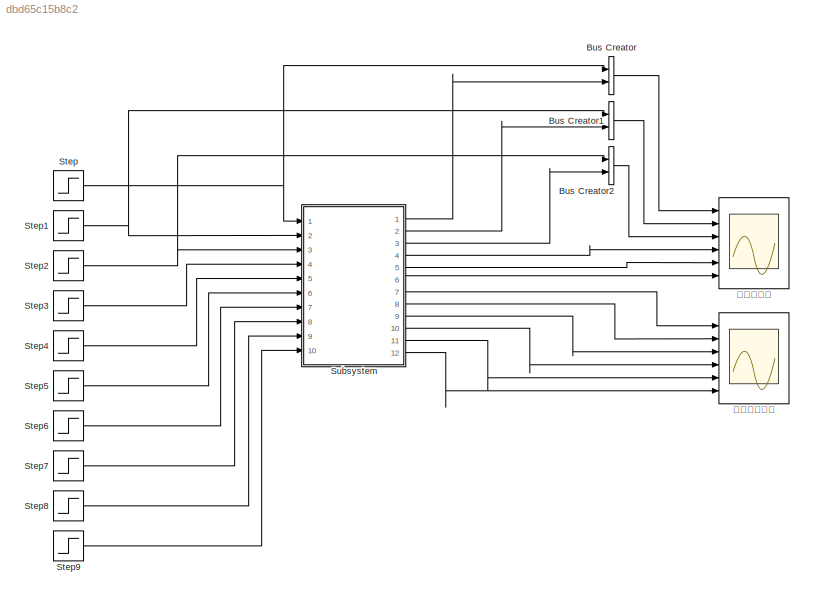
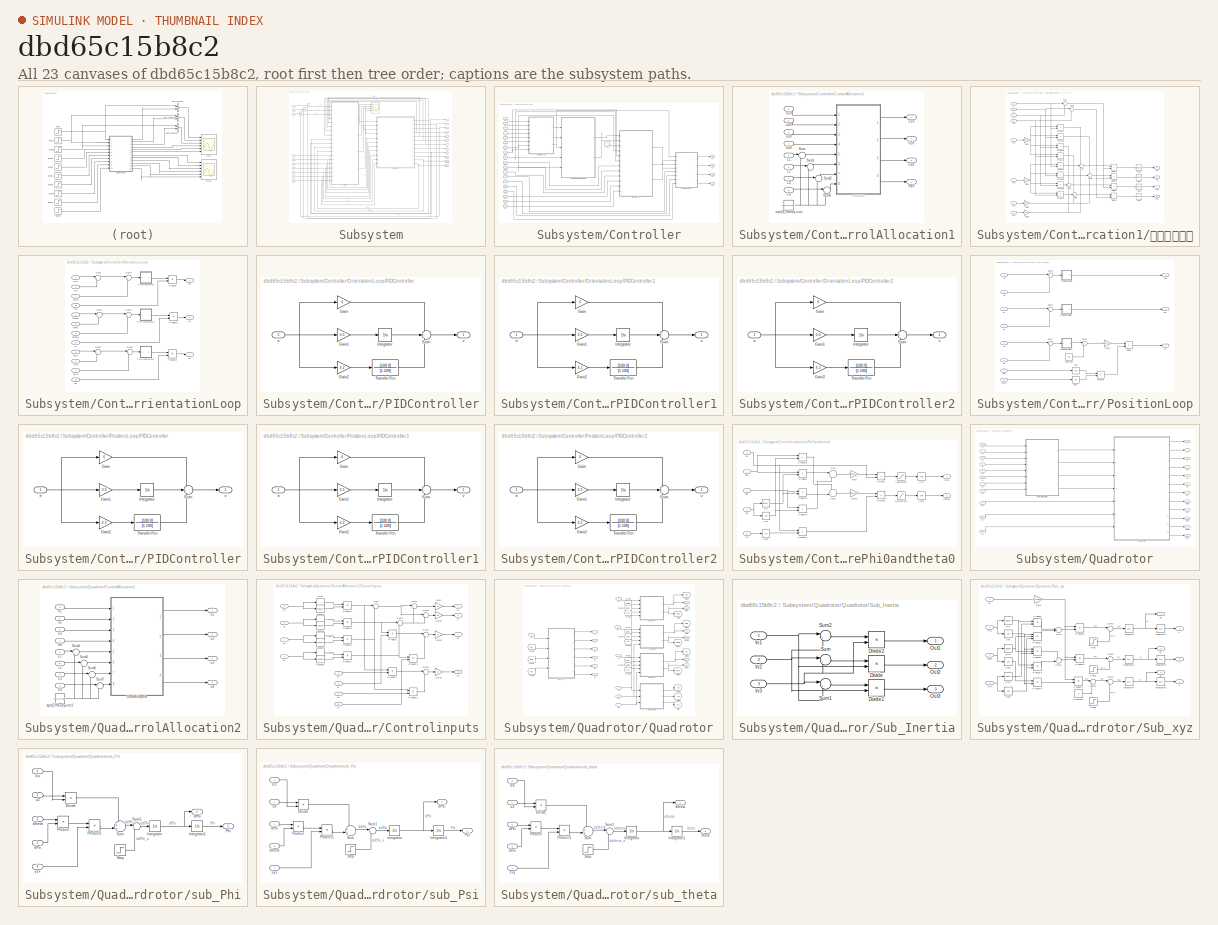
[diagram: thumbnail index - all 23 canvases of the model, root first then tree order]
MODEL slx_dbd65c15b8c2
KIND model
CONFIG AbsTol = auto
CONFIG EnableMultiTasking = off
CONFIG FixedStep = 1e-3
CONFIG MaxStep = auto
CONFIG MinStep = auto
CONFIG RelTol = 1e-3
CONFIG SampleTimeConstraint = Unconstrained
CONFIG SolverName = FixedStepAuto
CONFIG StartTime = 0.0
CONFIG StopTime = 100
BLOCK [BusCreator] Bus Creator
  DisplayOption = bar
  InheritFromInputs = on
  Inputs = 2
  Ports = [2, 1]
BLOCK [BusCreator] Bus Creator1
  DisplayOption = bar
  InheritFromInputs = on
  Inputs = 2
  Ports = [2, 1]
BLOCK [BusCreator] Bus Creator2
  DisplayOption = bar
  InheritFromInputs = on
  Inputs = 2
  Ports = [2, 1]
BLOCK [Step] Step
  After = 0.1
  SampleTime = 0
  Time = 0
BLOCK [Step] Step1
  After = 0.1
  SampleTime = 0
  Time = 0
BLOCK [Step] Step2
  After = 0.1
  SampleTime = 0
  Time = 0
BLOCK [Step] Step3
  After = 0.1
  SampleTime = 0
  Time = 0
BLOCK [Step] Step4
  After = 0.1
  SampleTime = 0
  Time = 0
BLOCK [Step] Step5
  After = 0.1
  SampleTime = 0
  Time = 0
BLOCK [Step] Step6
  After = 0.1
  SampleTime = 0
  Time = 0
BLOCK [Step] Step7
  After = 0.037483483311225634
  SampleTime = 0
  Time = 0
BLOCK [Step] Step8
  After = 0.037483483311225634
  SampleTime = 0
  Time = 0
BLOCK [Step] Step9
  After = 0.07485943328911793
  SampleTime = 0
  Time = 0
BLOCK [SubSystem] Subsystem
  Ports = [10, 12]
  RequestExecContextInheritance = off
BLOCK [SubSystem] Subsystem/Controller
  Ports = [19, 4]
  RequestExecContextInheritance = off
BLOCK [SubSystem] Subsystem/Controller/ControlAllocation1
  Ports = [8, 4]
  RequestExecContextInheritance = off
BLOCK [Inport] Subsystem/Controller/ControlAllocation1/L1
  Port = 5
BLOCK [Inport] Subsystem/Controller/ControlAllocation1/L2
  Port = 6
BLOCK [Inport] Subsystem/Controller/ControlAllocation1/L3
  Port = 7
BLOCK [Inport] Subsystem/Controller/ControlAllocation1/L4
  Port = 8
BLOCK [Sum] Subsystem/Controller/ControlAllocation1/Sum
  Inputs = |++
  Ports = [2, 1]
BLOCK [Sum] Subsystem/Controller/ControlAllocation1/Sum1
  Inputs = |++
  Ports = [2, 1]
BLOCK [Sum] Subsystem/Controller/ControlAllocation1/Sum2
  Inputs = |++
  Ports = [2, 1]
BLOCK [Sum] Subsystem/Controller/ControlAllocation1/Sum3
  Inputs = |++
  Ports = [2, 1]
BLOCK [Outport] Subsystem/Controller/ControlAllocation1/n10
BLOCK [Outport] Subsystem/Controller/ControlAllocation1/n20
  Port = 2
BLOCK [Outport] Subsystem/Controller/ControlAllocation1/n30
  Port = 3
BLOCK [Outport] Subsystem/Controller/ControlAllocation1/n40
  Port = 4
BLOCK [Constant] Subsystem/Controller/ControlAllocation1/sqrt(2)*lbody+rrot
  Value = sqrt(2)*lbody+rrot
BLOCK [Inport] Subsystem/Controller/ControlAllocation1/u10
BLOCK [Inport] Subsystem/Controller/ControlAllocation1/u20
  Port = 2
BLOCK [Inport] Subsystem/Controller/ControlAllocation1/u30
  Port = 3
BLOCK [Inport] Subsystem/Controller/ControlAllocation1/u40
  Port = 4
BLOCK [SubSystem] Subsystem/Controller/ControlAllocation1/电机期望转速
  Ports = [8, 4]
  RequestExecContextInheritance = off
BLOCK [Product] Subsystem/Controller/ControlAllocation1/电机期望转速/Divide
  Inputs = */
  Ports = [2, 1]
BLOCK [Product] Subsystem/Controller/ControlAllocation1/电机期望转速/Divide1
  Inputs = */
  Ports = [2, 1]
BLOCK [Product] Subsystem/Controller/ControlAllocation1/电机期望转速/Divide2
  Inputs = */
  Ports = [2, 1]
BLOCK [Product] Subsystem/Controller/ControlAllocation1/电机期望转速/Divide3
  Inputs = */
  Ports = [2, 1]
BLOCK [Gain] Subsystem/Controller/ControlAllocation1/电机期望转速/Gain1
  Gain = 1/(2*kf)
BLOCK [Gain] Subsystem/Controller/ControlAllocation1/电机期望转速/Gain2
  Gain = 1/kf
BLOCK [Gain] Subsystem/Controller/ControlAllocation1/电机期望转速/Gain4
  Gain = 1/(2*km)
BLOCK [Gain] Subsystem/Controller/ControlAllocation1/电机期望转速/Gain5
  Gain = 1/kf
BLOCK [Inport] Subsystem/Controller/ControlAllocation1/电机期望转速/L1
  Port = 5
BLOCK [Inport] Subsystem/Controller/ControlAllocation1/电机期望转速/L2
  Port = 6
BLOCK [Inport] Subsystem/Controller/ControlAllocation1/电机期望转速/L3
  Port = 7
BLOCK [Inport] Subsystem/Controller/ControlAllocation1/电机期望转速/L4
  Port = 8
BLOCK [Product] Subsystem/Controller/ControlAllocation1/电机期望转速/Product
  Ports = [2, 1]
BLOCK [Product] Subsystem/Controller/ControlAllocation1/电机期望转速/Product1
  Ports = [2, 1]
BLOCK [Product] Subsystem/Controller/ControlAllocation1/电机期望转速/Product2
  Ports = [2, 1]
BLOCK [Product] Subsystem/Controller/ControlAllocation1/电机期望转速/Product3
  Ports = [2, 1]
BLOCK [Product] Subsystem/Controller/ControlAllocation1/电机期望转速/Product4
  Ports = [2, 1]
BLOCK [Product] Subsystem/Controller/ControlAllocation1/电机期望转速/Product5
  Ports = [2, 1]
BLOCK [Product] Subsystem/Controller/ControlAllocation1/电机期望转速/Product6
  Ports = [2, 1]
BLOCK [Product] Subsystem/Controller/ControlAllocation1/电机期望转速/Product7
  Ports = [2, 1]
BLOCK [Sqrt] Subsystem/Controller/ControlAllocation1/电机期望转速/Sqrt1
  Operator = signedSqrt
BLOCK [Sqrt] Subsystem/Controller/ControlAllocation1/电机期望转速/Sqrt2
  Operator = signedSqrt
BLOCK [Sqrt] Subsystem/Controller/ControlAllocation1/电机期望转速/Sqrt3
  Operator = signedSqrt
BLOCK [Sqrt] Subsystem/Controller/ControlAllocation1/电机期望转速/Sqrt4
  Operator = signedSqrt
BLOCK [Sum] Subsystem/Controller/ControlAllocation1/电机期望转速/Sum
  Inputs = |++
  Ports = [2, 1]
BLOCK [Sum] Subsystem/Controller/ControlAllocation1/电机期望转速/Sum1
  Inputs = |++
  Ports = [2, 1]
BLOCK [Sum] Subsystem/Controller/ControlAllocation1/电机期望转速/Sum2
  Inputs = +++
  Ports = [3, 1]
BLOCK [Sum] Subsystem/Controller/ControlAllocation1/电机期望转速/Sum3
  Inputs = +--
  Ports = [3, 1]
BLOCK [Sum] Subsystem/Controller/ControlAllocation1/电机期望转速/Sum4
  Inputs = ++-
  Ports = [3, 1]
BLOCK [Sum] Subsystem/Controller/ControlAllocation1/电机期望转速/Sum5
  Inputs = +-+
  Ports = [3, 1]
BLOCK [Outport] Subsystem/Controller/ControlAllocation1/电机期望转速/n10
BLOCK [Outport] Subsystem/Controller/ControlAllocation1/电机期望转速/n20
  Port = 2
BLOCK [Outport] Subsystem/Controller/ControlAllocation1/电机期望转速/n30
  Port = 3
BLOCK [Outport] Subsystem/Controller/ControlAllocation1/电机期望转速/n40
  Port = 4
BLOCK [Inport] Subsystem/Controller/ControlAllocation1/电机期望转速/u10
BLOCK [Inport] Subsystem/Controller/ControlAllocation1/电机期望转速/u20
  Port = 2
BLOCK [Inport] Subsystem/Controller/ControlAllocation1/电机期望转速/u30
  Port = 3
BLOCK [Inport] Subsystem/Controller/ControlAllocation1/电机期望转速/u40
  Port = 4
BLOCK [Inport] Subsystem/Controller/Ixx
  Port = 17
BLOCK [Inport] Subsystem/Controller/Iyy
  Port = 18
BLOCK [Inport] Subsystem/Controller/Izz
  Port = 19
BLOCK [Inport] Subsystem/Controller/L1
  Port = 13
BLOCK [Inport] Subsystem/Controller/L2
  Port = 14
BLOCK [Inport] Subsystem/Controller/L3
  Port = 15
BLOCK [Inport] Subsystem/Controller/L4
  Port = 16
BLOCK [SubSystem] Subsystem/Controller/OrientationLoop
  Ports = [12, 3]
  RequestExecContextInheritance = off
BLOCK [Inport] Subsystem/Controller/OrientationLoop/Ixx
  Port = 10
BLOCK [Inport] Subsystem/Controller/OrientationLoop/Iyy
  Port = 11
BLOCK [Inport] Subsystem/Controller/OrientationLoop/Izz
  Port = 12
BLOCK [SubSystem] Subsystem/Controller/OrientationLoop/PIDController
  Ports = [1, 1]
  RequestExecContextInheritance = off
BLOCK [Gain] Subsystem/Controller/OrientationLoop/PIDController/Gain
  Gain = 6
BLOCK [Gain] Subsystem/Controller/OrientationLoop/PIDController/Gain1
  Gain = 0.5
BLOCK [Gain] Subsystem/Controller/OrientationLoop/PIDController/Gain2
  Gain = 4.2
BLOCK [Integrator] Subsystem/Controller/OrientationLoop/PIDController/Integrator
  Ports = [1, 1]
BLOCK [Sum] Subsystem/Controller/OrientationLoop/PIDController/Sum
  Inputs = +++
  Ports = [3, 1]
BLOCK [TransferFcn] Subsystem/Controller/OrientationLoop/PIDController/Transfer Fcn
  Denominator = [1 100]
  Numerator = [100 0]
BLOCK [Inport] Subsystem/Controller/OrientationLoop/PIDController/e
BLOCK [Outport] Subsystem/Controller/OrientationLoop/PIDController/v
BLOCK [SubSystem] Subsystem/Controller/OrientationLoop/PIDController1
  Ports = [1, 1]
  RequestExecContextInheritance = off
BLOCK [Gain] Subsystem/Controller/OrientationLoop/PIDController1/Gain
  Gain = 6
BLOCK [Gain] Subsystem/Controller/OrientationLoop/PIDController1/Gain1
  Gain = 0.5
BLOCK [Gain] Subsystem/Controller/OrientationLoop/PIDController1/Gain2
  Gain = 4.2
BLOCK [Integrator] Subsystem/Controller/OrientationLoop/PIDController1/Integrator
  Ports = [1, 1]
BLOCK [Sum] Subsystem/Controller/OrientationLoop/PIDController1/Sum
  Inputs = +++
  Ports = [3, 1]
BLOCK [TransferFcn] Subsystem/Controller/OrientationLoop/PIDController1/Transfer Fcn
  Denominator = [1 100]
  Numerator = [100 0]
BLOCK [Inport] Subsystem/Controller/OrientationLoop/PIDController1/e
BLOCK [Outport] Subsystem/Controller/OrientationLoop/PIDController1/v
BLOCK [SubSystem] Subsystem/Controller/OrientationLoop/PIDController2
  Ports = [1, 1]
  RequestExecContextInheritance = off
BLOCK [Gain] Subsystem/Controller/OrientationLoop/PIDController2/Gain
  Gain = 6
BLOCK [Gain] Subsystem/Controller/OrientationLoop/PIDController2/Gain1
  Gain = 0.5
BLOCK [Gain] Subsystem/Controller/OrientationLoop/PIDController2/Gain2
  Gain = 4.2
BLOCK [Integrator] Subsystem/Controller/OrientationLoop/PIDController2/Integrator
  Ports = [1, 1]
BLOCK [Sum] Subsystem/Controller/OrientationLoop/PIDController2/Sum
  Inputs = +++
  Ports = [3, 1]
BLOCK [TransferFcn] Subsystem/Controller/OrientationLoop/PIDController2/Transfer Fcn
  Denominator = [1 100]
  Numerator = [100 0]
BLOCK [Inport] Subsystem/Controller/OrientationLoop/PIDController2/e
BLOCK [Outport] Subsystem/Controller/OrientationLoop/PIDController2/v
BLOCK [Inport] Subsystem/Controller/OrientationLoop/Phi
  Port = 4
BLOCK [Inport] Subsystem/Controller/OrientationLoop/Phi0
BLOCK [Product] Subsystem/Controller/OrientationLoop/Product
  Ports = [2, 1]
BLOCK [Product] Subsystem/Controller/OrientationLoop/Product1
  Ports = [2, 1]
BLOCK [Product] Subsystem/Controller/OrientationLoop/Product2
  Ports = [2, 1]
BLOCK [Inport] Subsystem/Controller/OrientationLoop/Psi
  Port = 6
BLOCK [Sum] Subsystem/Controller/OrientationLoop/Sum
  Inputs = |+-
  Ports = [2, 1]
BLOCK [Sum] Subsystem/Controller/OrientationLoop/Sum1
  Inputs = |+-
  Ports = [2, 1]
BLOCK [Sum] Subsystem/Controller/OrientationLoop/Sum2
  Inputs = |+-
  Ports = [2, 1]
BLOCK [Sum] Subsystem/Controller/OrientationLoop/Sum3
  Inputs = |+-
  Ports = [2, 1]
BLOCK [Sum] Subsystem/Controller/OrientationLoop/Sum4
  Inputs = |+-
  Ports = [2, 1]
BLOCK [Sum] Subsystem/Controller/OrientationLoop/Sum5
  Inputs = |+-
  Ports = [2, 1]
BLOCK [Inport] Subsystem/Controller/OrientationLoop/dPhi
  Port = 7
BLOCK [Inport] Subsystem/Controller/OrientationLoop/dPsi
  Port = 9
BLOCK [Inport] Subsystem/Controller/OrientationLoop/dtheta
  Port = 8
BLOCK [Inport] Subsystem/Controller/OrientationLoop/psi0
  Port = 3
BLOCK [Inport] Subsystem/Controller/OrientationLoop/theta
  Port = 5
BLOCK [Inport] Subsystem/Controller/OrientationLoop/theta0
  Port = 2
BLOCK [Outport] Subsystem/Controller/OrientationLoop/u2
BLOCK [Outport] Subsystem/Controller/OrientationLoop/u3
  Port = 2
BLOCK [Outport] Subsystem/Controller/OrientationLoop/u4
  Port = 3
BLOCK [Inport] Subsystem/Controller/Phi
  Port = 4
BLOCK [SubSystem] Subsystem/Controller/PositionLoop
  Ports = [8, 3]
  RequestExecContextInheritance = off
BLOCK [Constant] Subsystem/Controller/PositionLoop/Constant
  Value = 9.8
BLOCK [Trigonometry] Subsystem/Controller/PositionLoop/Cos
  Operator = cos
  Ports = [1, 1]
BLOCK [Trigonometry] Subsystem/Controller/PositionLoop/Cos1
  Operator = cos
  Ports = [1, 1]
BLOCK [Product] Subsystem/Controller/PositionLoop/Divide
  Inputs = */
  Ports = [2, 1]
BLOCK [Gain] Subsystem/Controller/PositionLoop/Gain1
  Gain = mbody+4*(marm+mrot)
BLOCK [SubSystem] Subsystem/Controller/PositionLoop/PIDController
  Ports = [1, 1]
  RequestExecContextInheritance = off
BLOCK [Gain] Subsystem/Controller/PositionLoop/PIDController/Gain
  Gain = 6
BLOCK [Gain] Subsystem/Controller/PositionLoop/PIDController/Gain1
  Gain = 0.5
BLOCK [Gain] Subsystem/Controller/PositionLoop/PIDController/Gain2
  Gain = 4.2
BLOCK [Integrator] Subsystem/Controller/PositionLoop/PIDController/Integrator
  Ports = [1, 1]
BLOCK [Sum] Subsystem/Controller/PositionLoop/PIDController/Sum
  Inputs = +++
  Ports = [3, 1]
BLOCK [TransferFcn] Subsystem/Controller/PositionLoop/PIDController/Transfer Fcn
  Denominator = [1 100]
  Numerator = [100 0]
BLOCK [Inport] Subsystem/Controller/PositionLoop/PIDController/e
BLOCK [Outport] Subsystem/Controller/PositionLoop/PIDController/v
BLOCK [SubSystem] Subsystem/Controller/PositionLoop/PIDController1
  Ports = [1, 1]
  RequestExecContextInheritance = off
BLOCK [Gain] Subsystem/Controller/PositionLoop/PIDController1/Gain
  Gain = 6
BLOCK [Gain] Subsystem/Controller/PositionLoop/PIDController1/Gain1
  Gain = 0.5
BLOCK [Gain] Subsystem/Controller/PositionLoop/PIDController1/Gain2
  Gain = 4.2
BLOCK [Integrator] Subsystem/Controller/PositionLoop/PIDController1/Integrator
  Ports = [1, 1]
BLOCK [Sum] Subsystem/Controller/PositionLoop/PIDController1/Sum
  Inputs = +++
  Ports = [3, 1]
BLOCK [TransferFcn] Subsystem/Controller/PositionLoop/PIDController1/Transfer Fcn
  Denominator = [1 100]
  Numerator = [100 0]
BLOCK [Inport] Subsystem/Controller/PositionLoop/PIDController1/e
BLOCK [Outport] Subsystem/Controller/PositionLoop/PIDController1/v
BLOCK [SubSystem] Subsystem/Controller/PositionLoop/PIDController2
  Ports = [1, 1]
  RequestExecContextInheritance = off
BLOCK [Gain] Subsystem/Controller/PositionLoop/PIDController2/Gain
  Gain = 6
BLOCK [Gain] Subsystem/Controller/PositionLoop/PIDController2/Gain1
  Gain = 0.5
BLOCK [Gain] Subsystem/Controller/PositionLoop/PIDController2/Gain2
  Gain = 4.2
BLOCK [Integrator] Subsystem/Controller/PositionLoop/PIDController2/Integrator
  Ports = [1, 1]
BLOCK [Sum] Subsystem/Controller/PositionLoop/PIDController2/Sum
  Inputs = +++
  Ports = [3, 1]
BLOCK [TransferFcn] Subsystem/Controller/PositionLoop/PIDController2/Transfer Fcn
  Denominator = [1 100]
  Numerator = [100 0]
BLOCK [Inport] Subsystem/Controller/PositionLoop/PIDController2/e
BLOCK [Outport] Subsystem/Controller/PositionLoop/PIDController2/v
BLOCK [Inport] Subsystem/Controller/PositionLoop/Phi
  Port = 7
BLOCK [Product] Subsystem/Controller/PositionLoop/Product
  Ports = [2, 1]
BLOCK [Sum] Subsystem/Controller/PositionLoop/Sum4
  Inputs = |++
  Ports = [2, 1]
BLOCK [Sum] Subsystem/Controller/PositionLoop/Sum5
  Inputs = |+-
  Ports = [2, 1]
BLOCK [Sum] Subsystem/Controller/PositionLoop/Sum6
  Inputs = |+-
  Ports = [2, 1]
BLOCK [Sum] Subsystem/Controller/PositionLoop/Sum7
  Inputs = |+-
  Ports = [2, 1]
BLOCK [Outport] Subsystem/Controller/PositionLoop/ddx
BLOCK [Outport] Subsystem/Controller/PositionLoop/ddy
  Port = 2
BLOCK [Inport] Subsystem/Controller/PositionLoop/dx
  Port = 4
BLOCK [Inport] Subsystem/Controller/PositionLoop/dy
  Port = 5
BLOCK [Inport] Subsystem/Controller/PositionLoop/dz
  Port = 6
BLOCK [Inport] Subsystem/Controller/PositionLoop/ex
BLOCK [Inport] Subsystem/Controller/PositionLoop/ey
  Port = 2
BLOCK [Inport] Subsystem/Controller/PositionLoop/ez
  Port = 3
BLOCK [Inport] Subsystem/Controller/PositionLoop/theta
  Port = 8
BLOCK [Outport] Subsystem/Controller/PositionLoop/u1
  Port = 3
BLOCK [Inport] Subsystem/Controller/Psi
  Port = 6
BLOCK [Constant] Subsystem/Controller/Psi0
  Value = 0
BLOCK [SubSystem] Subsystem/Controller/calculatePhi0andtheta0
  Ports = [5, 2]
  RequestExecContextInheritance = off
BLOCK [Trigonometry] Subsystem/Controller/calculatePhi0andtheta0/Asin
  Operator = asin
  Ports = [1, 1]
BLOCK [Trigonometry] Subsystem/Controller/calculatePhi0andtheta0/Asin1
  Operator = asin
  Ports = [1, 1]
BLOCK [Trigonometry] Subsystem/Controller/calculatePhi0andtheta0/Cos
  Operator = cos
  Ports = [1, 1]
BLOCK [Trigonometry] Subsystem/Controller/calculatePhi0andtheta0/Cos1
  Operator = cos
  Ports = [1, 1]
BLOCK [Product] Subsystem/Controller/calculatePhi0andtheta0/Divide
  Inputs = */
  Ports = [2, 1]
BLOCK [Product] Subsystem/Controller/calculatePhi0andtheta0/Divide1
  Inputs = */
  Ports = [2, 1]
BLOCK [Gain] Subsystem/Controller/calculatePhi0andtheta0/Gain
  Gain = mbody+4*(marm+mrot)
BLOCK [Gain] Subsystem/Controller/calculatePhi0andtheta0/Gain1
  Gain = mbody+4*(marm+mrot)
BLOCK [Inport] Subsystem/Controller/calculatePhi0andtheta0/Phi
  Port = 5
BLOCK [Outport] Subsystem/Controller/calculatePhi0andtheta0/Phi0
BLOCK [Product] Subsystem/Controller/calculatePhi0andtheta0/Product
  Ports = [2, 1]
BLOCK [Product] Subsystem/Controller/calculatePhi0andtheta0/Product1
  Ports = [2, 1]
BLOCK [Product] Subsystem/Controller/calculatePhi0andtheta0/Product2
  Ports = [2, 1]
BLOCK [Product] Subsystem/Controller/calculatePhi0andtheta0/Product3
  Ports = [2, 1]
BLOCK [Product] Subsystem/Controller/calculatePhi0andtheta0/Product4
  Ports = [2, 1]
BLOCK [Saturate] Subsystem/Controller/calculatePhi0andtheta0/Saturation
  LowerLimit = -1
  UpperLimit = 1
BLOCK [Saturate] Subsystem/Controller/calculatePhi0andtheta0/Saturation1
  LowerLimit = -1
  UpperLimit = 1
BLOCK [Trigonometry] Subsystem/Controller/calculatePhi0andtheta0/Sin
  Ports = [1, 1]
BLOCK [Sum] Subsystem/Controller/calculatePhi0andtheta0/Sum
  Inputs = |+-
  Ports = [2, 1]
BLOCK [Sum] Subsystem/Controller/calculatePhi0andtheta0/Sum1
  Inputs = ++|
  Ports = [2, 1]
BLOCK [Inport] Subsystem/Controller/calculatePhi0andtheta0/ddx
BLOCK [Inport] Subsystem/Controller/calculatePhi0andtheta0/ddy
  Port = 2
BLOCK [Inport] Subsystem/Controller/calculatePhi0andtheta0/psi
  Port = 4
BLOCK [Outport] Subsystem/Controller/calculatePhi0andtheta0/theta0
  Port = 2
BLOCK [Inport] Subsystem/Controller/calculatePhi0andtheta0/u1
  Port = 3
BLOCK [Inport] Subsystem/Controller/dPhi
  Port = 10
BLOCK [Inport] Subsystem/Controller/dPsi
  Port = 12
BLOCK [Inport] Subsystem/Controller/dtheta
  Port = 11
BLOCK [Inport] Subsystem/Controller/dx
  Port = 7
BLOCK [Inport] Subsystem/Controller/dy
  Port = 8
BLOCK [Inport] Subsystem/Controller/dz
  Port = 9
BLOCK [Inport] Subsystem/Controller/ex
BLOCK [Inport] Subsystem/Controller/ey
  Port = 2
BLOCK [Inport] Subsystem/Controller/ez
  Port = 3
BLOCK [Outport] Subsystem/Controller/n1
BLOCK [Outport] Subsystem/Controller/n2
  Port = 2
BLOCK [Outport] Subsystem/Controller/n3
  Port = 3
BLOCK [Outport] Subsystem/Controller/n4
  Port = 4
BLOCK [Inport] Subsystem/Controller/theta
  Port = 5
BLOCK [Inport] Subsystem/Ixx
  Port = 8
BLOCK [Inport] Subsystem/Iyy
  Port = 9
BLOCK [Inport] Subsystem/Izz
  Port = 10
BLOCK [Inport] Subsystem/L1
  Port = 4
BLOCK [Inport] Subsystem/L2
  Port = 5
BLOCK [Inport] Subsystem/L3
  Port = 6
BLOCK [Inport] Subsystem/L4
  Port = 7
BLOCK [Outport] Subsystem/Phi
  Port = 4
BLOCK [Outport] Subsystem/Psi
  Port = 6
BLOCK [SubSystem] Subsystem/Quadrotor
  Ports = [11, 12]
  RequestExecContextInheritance = off
BLOCK [SubSystem] Subsystem/Quadrotor/ControlAllocation2
  Ports = [8, 4]
  RequestExecContextInheritance = off
BLOCK [SubSystem] Subsystem/Quadrotor/ControlAllocation2/Controlinputs
  Ports = [8, 4]
  RequestExecContextInheritance = off
BLOCK [Gain] Subsystem/Quadrotor/ControlAllocation2/Controlinputs/Gain
  Gain = kf
BLOCK [Gain] Subsystem/Quadrotor/ControlAllocation2/Controlinputs/Gain1
  Gain = km
BLOCK [Gain] Subsystem/Quadrotor/ControlAllocation2/Controlinputs/Gain2
  Gain = kf
BLOCK [Gain] Subsystem/Quadrotor/ControlAllocation2/Controlinputs/Gain3
  Gain = kf
BLOCK [Inport] Subsystem/Quadrotor/ControlAllocation2/Controlinputs/L1
  Port = 5
BLOCK [Inport] Subsystem/Quadrotor/ControlAllocation2/Controlinputs/L2
  Port = 6
BLOCK [Inport] Subsystem/Quadrotor/ControlAllocation2/Controlinputs/L3
  Port = 7
BLOCK [Inport] Subsystem/Quadrotor/ControlAllocation2/Controlinputs/L4
  Port = 8
BLOCK [Product] Subsystem/Quadrotor/ControlAllocation2/Controlinputs/Product
  Ports = [2, 1]
BLOCK [Product] Subsystem/Quadrotor/ControlAllocation2/Controlinputs/Product1
  Ports = [2, 1]
BLOCK [Product] Subsystem/Quadrotor/ControlAllocation2/Controlinputs/Product2
  Ports = [2, 1]
BLOCK [Product] Subsystem/Quadrotor/ControlAllocation2/Controlinputs/Product3
  Ports = [2, 1]
BLOCK [Product] Subsystem/Quadrotor/ControlAllocation2/Controlinputs/Product4
  Ports = [2, 1]
BLOCK [Product] Subsystem/Quadrotor/ControlAllocation2/Controlinputs/Product5
  Ports = [2, 1]
BLOCK [Product] Subsystem/Quadrotor/ControlAllocation2/Controlinputs/Product6
  Ports = [2, 1]
BLOCK [Product] Subsystem/Quadrotor/ControlAllocation2/Controlinputs/Product7
  Ports = [2, 1]
BLOCK [Signum] Subsystem/Quadrotor/ControlAllocation2/Controlinputs/Sign
BLOCK [Signum] Subsystem/Quadrotor/ControlAllocation2/Controlinputs/Sign1
BLOCK [Signum] Subsystem/Quadrotor/ControlAllocation2/Controlinputs/Sign2
BLOCK [Signum] Subsystem/Quadrotor/ControlAllocation2/Controlinputs/Sign3
BLOCK [Math] Subsystem/Quadrotor/ControlAllocation2/Controlinputs/Square
  Operator = square
  Ports = [1, 1]
BLOCK [Math] Subsystem/Quadrotor/ControlAllocation2/Controlinputs/Square1
  Operator = square
  Ports = [1, 1]
BLOCK [Math] Subsystem/Quadrotor/ControlAllocation2/Controlinputs/Square2
  Operator = square
  Ports = [1, 1]
BLOCK [Math] Subsystem/Quadrotor/ControlAllocation2/Controlinputs/Square4
  Operator = square
  Ports = [1, 1]
BLOCK [Sum] Subsystem/Quadrotor/ControlAllocation2/Controlinputs/Sum
  Inputs = |++
  Ports = [2, 1]
BLOCK [Sum] Subsystem/Quadrotor/ControlAllocation2/Controlinputs/Sum1
  Inputs = |++
  Ports = [2, 1]
BLOCK [Sum] Subsystem/Quadrotor/ControlAllocation2/Controlinputs/Sum2
  Inputs = |++
  Ports = [2, 1]
BLOCK [Sum] Subsystem/Quadrotor/ControlAllocation2/Controlinputs/Sum3
  Inputs = |+-
  Ports = [2, 1]
BLOCK [Sum] Subsystem/Quadrotor/ControlAllocation2/Controlinputs/Sum4
  Inputs = |-+
  Ports = [2, 1]
BLOCK [Sum] Subsystem/Quadrotor/ControlAllocation2/Controlinputs/Sum5
  Inputs = |+-
  Ports = [2, 1]
BLOCK [Inport] Subsystem/Quadrotor/ControlAllocation2/Controlinputs/n1
BLOCK [Inport] Subsystem/Quadrotor/ControlAllocation2/Controlinputs/n2
  Port = 2
BLOCK [Inport] Subsystem/Quadrotor/ControlAllocation2/Controlinputs/n3
  Port = 3
BLOCK [Inport] Subsystem/Quadrotor/ControlAllocation2/Controlinputs/n4
  Port = 4
BLOCK [Outport] Subsystem/Quadrotor/ControlAllocation2/Controlinputs/u1
BLOCK [Outport] Subsystem/Quadrotor/ControlAllocation2/Controlinputs/u2
  Port = 2
BLOCK [Outport] Subsystem/Quadrotor/ControlAllocation2/Controlinputs/u3
  Port = 3
BLOCK [Outport] Subsystem/Quadrotor/ControlAllocation2/Controlinputs/u4
  Port = 4
BLOCK [Inport] Subsystem/Quadrotor/ControlAllocation2/L1
  Port = 5
BLOCK [Inport] Subsystem/Quadrotor/ControlAllocation2/L2
  Port = 6
BLOCK [Inport] Subsystem/Quadrotor/ControlAllocation2/L3
  Port = 7
BLOCK [Inport] Subsystem/Quadrotor/ControlAllocation2/L4
  Port = 8
BLOCK [Sum] Subsystem/Quadrotor/ControlAllocation2/Sum4
  Inputs = |++
  Ports = [2, 1]
BLOCK [Sum] Subsystem/Quadrotor/ControlAllocation2/Sum5
  Inputs = |++
  Ports = [2, 1]
BLOCK [Sum] Subsystem/Quadrotor/ControlAllocation2/Sum6
  Inputs = |++
  Ports = [2, 1]
BLOCK [Sum] Subsystem/Quadrotor/ControlAllocation2/Sum7
  Inputs = |++
  Ports = [2, 1]
BLOCK [Inport] Subsystem/Quadrotor/ControlAllocation2/n1
BLOCK [Inport] Subsystem/Quadrotor/ControlAllocation2/n2
  Port = 2
BLOCK [Inport] Subsystem/Quadrotor/ControlAllocation2/n3
  Port = 3
BLOCK [Inport] Subsystem/Quadrotor/ControlAllocation2/n4
  Port = 4
BLOCK [Constant] Subsystem/Quadrotor/ControlAllocation2/sqrt(2)*lbody+rrot1
  Value = sqrt(2)*lbody+rrot
BLOCK [Outport] Subsystem/Quadrotor/ControlAllocation2/u1
BLOCK [Outport] Subsystem/Quadrotor/ControlAllocation2/u2
  Port = 2
BLOCK [Outport] Subsystem/Quadrotor/ControlAllocation2/u3
  Port = 3
BLOCK [Outport] Subsystem/Quadrotor/ControlAllocation2/u4
  Port = 4
BLOCK [Inport] Subsystem/Quadrotor/Ixx
  Port = 9
BLOCK [Inport] Subsystem/Quadrotor/Iyy
  Port = 10
BLOCK [Inport] Subsystem/Quadrotor/Izz
  Port = 11
BLOCK [Inport] Subsystem/Quadrotor/L1
  Port = 5
BLOCK [Inport] Subsystem/Quadrotor/L2
  Port = 6
BLOCK [Inport] Subsystem/Quadrotor/L3
  Port = 7
BLOCK [Inport] Subsystem/Quadrotor/L4
  Port = 8
BLOCK [Outport] Subsystem/Quadrotor/Phi
  Port = 4
BLOCK [Outport] Subsystem/Quadrotor/Psi
  Port = 6
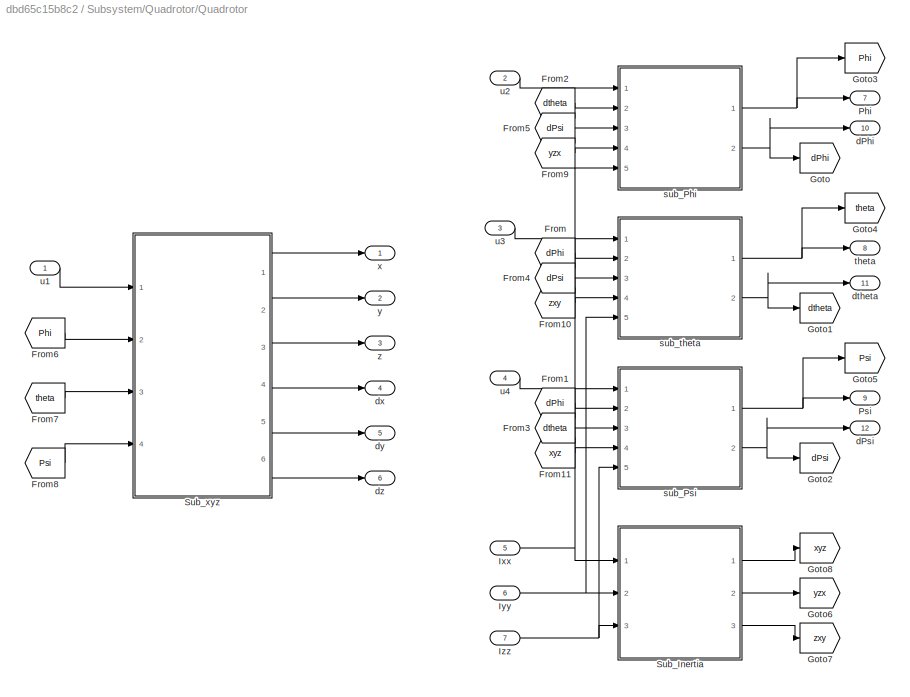
BLOCK [SubSystem] Subsystem/Quadrotor/Quadrotor
  Ports = [7, 12]
  RequestExecContextInheritance = off
BLOCK [From] Subsystem/Quadrotor/Quadrotor/From
  GotoTag = dPhi
BLOCK [From] Subsystem/Quadrotor/Quadrotor/From1
  GotoTag = dPhi
BLOCK [From] Subsystem/Quadrotor/Quadrotor/From10
  GotoTag = zxy
BLOCK [From] Subsystem/Quadrotor/Quadrotor/From11
  GotoTag = xyz
BLOCK [From] Subsystem/Quadrotor/Quadrotor/From2
  GotoTag = dtheta
BLOCK [From] Subsystem/Quadrotor/Quadrotor/From3
  GotoTag = dtheta
BLOCK [From] Subsystem/Quadrotor/Quadrotor/From4
  GotoTag = dPsi
BLOCK [From] Subsystem/Quadrotor/Quadrotor/From5
  GotoTag = dPsi
BLOCK [From] Subsystem/Quadrotor/Quadrotor/From6
  GotoTag = Phi
BLOCK [From] Subsystem/Quadrotor/Quadrotor/From7
  GotoTag = theta
BLOCK [From] Subsystem/Quadrotor/Quadrotor/From8
  GotoTag = Psi
BLOCK [From] Subsystem/Quadrotor/Quadrotor/From9
  GotoTag = yzx
BLOCK [Goto] Subsystem/Quadrotor/Quadrotor/Goto
  GotoTag = dPhi
BLOCK [Goto] Subsystem/Quadrotor/Quadrotor/Goto1
  GotoTag = dtheta
BLOCK [Goto] Subsystem/Quadrotor/Quadrotor/Goto2
  GotoTag = dPsi
BLOCK [Goto] Subsystem/Quadrotor/Quadrotor/Goto3
  GotoTag = Phi
BLOCK [Goto] Subsystem/Quadrotor/Quadrotor/Goto4
  GotoTag = theta
BLOCK [Goto] Subsystem/Quadrotor/Quadrotor/Goto5
  GotoTag = Psi
BLOCK [Goto] Subsystem/Quadrotor/Quadrotor/Goto6
  GotoTag = yzx
BLOCK [Goto] Subsystem/Quadrotor/Quadrotor/Goto7
  GotoTag = zxy
BLOCK [Goto] Subsystem/Quadrotor/Quadrotor/Goto8
  GotoTag = xyz
BLOCK [Inport] Subsystem/Quadrotor/Quadrotor/Ixx
  Port = 5
BLOCK [Inport] Subsystem/Quadrotor/Quadrotor/Iyy
  Port = 6
BLOCK [Inport] Subsystem/Quadrotor/Quadrotor/Izz
  Port = 7
BLOCK [Outport] Subsystem/Quadrotor/Quadrotor/Phi
  Port = 7
BLOCK [Outport] Subsystem/Quadrotor/Quadrotor/Psi
  Port = 9
BLOCK [SubSystem] Subsystem/Quadrotor/Quadrotor/Sub_Inertia
  Ports = [3, 3]
  RequestExecContextInheritance = off
BLOCK [Product] Subsystem/Quadrotor/Quadrotor/Sub_Inertia/Divide
  Inputs = */
  Ports = [2, 1]
BLOCK [Product] Subsystem/Quadrotor/Quadrotor/Sub_Inertia/Divide1
  Inputs = */
  Ports = [2, 1]
BLOCK [Product] Subsystem/Quadrotor/Quadrotor/Sub_Inertia/Divide2
  Inputs = */
  Ports = [2, 1]
BLOCK [Inport] Subsystem/Quadrotor/Quadrotor/Sub_Inertia/In1
BLOCK [Inport] Subsystem/Quadrotor/Quadrotor/Sub_Inertia/In2
  Port = 2
BLOCK [Inport] Subsystem/Quadrotor/Quadrotor/Sub_Inertia/In3
  Port = 3
BLOCK [Outport] Subsystem/Quadrotor/Quadrotor/Sub_Inertia/Out1
BLOCK [Outport] Subsystem/Quadrotor/Quadrotor/Sub_Inertia/Out2
  Port = 2
BLOCK [Outport] Subsystem/Quadrotor/Quadrotor/Sub_Inertia/Out3
  Port = 3
BLOCK [Sum] Subsystem/Quadrotor/Quadrotor/Sub_Inertia/Sum
  Inputs = |+-
  Ports = [2, 1]
BLOCK [Sum] Subsystem/Quadrotor/Quadrotor/Sub_Inertia/Sum1
  Inputs = |+-
  Ports = [2, 1]
BLOCK [Sum] Subsystem/Quadrotor/Quadrotor/Sub_Inertia/Sum2
  Inputs = |+-
  Ports = [2, 1]
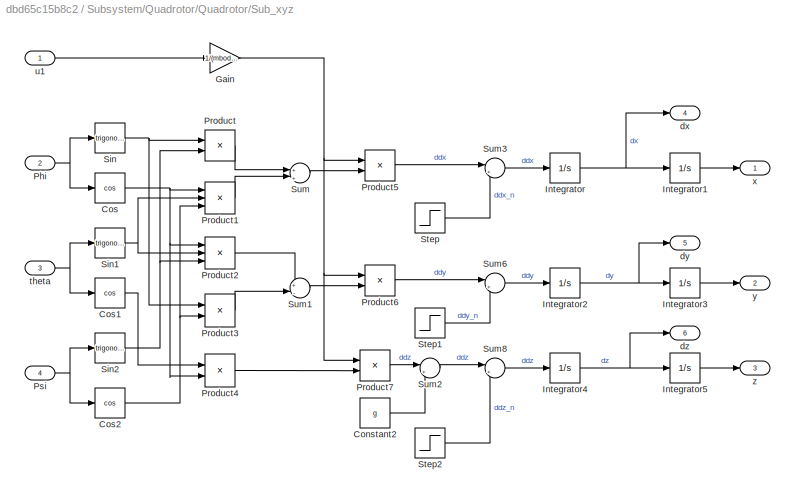
BLOCK [SubSystem] Subsystem/Quadrotor/Quadrotor/Sub_xyz
  Ports = [4, 6]
  RequestExecContextInheritance = off
BLOCK [Constant] Subsystem/Quadrotor/Quadrotor/Sub_xyz/Constant2
  Value = g
BLOCK [Trigonometry] Subsystem/Quadrotor/Quadrotor/Sub_xyz/Cos
  Operator = cos
  Ports = [1, 1]
BLOCK [Trigonometry] Subsystem/Quadrotor/Quadrotor/Sub_xyz/Cos1
  Operator = cos
  Ports = [1, 1]
BLOCK [Trigonometry] Subsystem/Quadrotor/Quadrotor/Sub_xyz/Cos2
  Operator = cos
  Ports = [1, 1]
BLOCK [Gain] Subsystem/Quadrotor/Quadrotor/Sub_xyz/Gain
  Gain = 1/(mbody+4*(marm+mrot))
BLOCK [Integrator] Subsystem/Quadrotor/Quadrotor/Sub_xyz/Integrator
  InitialCondition = dx_0
  Ports = [1, 1]
BLOCK [Integrator] Subsystem/Quadrotor/Quadrotor/Sub_xyz/Integrator1
  InitialCondition = x_0
  Ports = [1, 1]
BLOCK [Integrator] Subsystem/Quadrotor/Quadrotor/Sub_xyz/Integrator2
  InitialCondition = dy_0
  Ports = [1, 1]
BLOCK [Integrator] Subsystem/Quadrotor/Quadrotor/Sub_xyz/Integrator3
  InitialCondition = y_0
  Ports = [1, 1]
BLOCK [Integrator] Subsystem/Quadrotor/Quadrotor/Sub_xyz/Integrator4
  InitialCondition = dz_0
  Ports = [1, 1]
BLOCK [Integrator] Subsystem/Quadrotor/Quadrotor/Sub_xyz/Integrator5
  InitialCondition = z_0
  Ports = [1, 1]
BLOCK [Inport] Subsystem/Quadrotor/Quadrotor/Sub_xyz/Phi
  Port = 2
BLOCK [Product] Subsystem/Quadrotor/Quadrotor/Sub_xyz/Product
  Ports = [2, 1]
BLOCK [Product] Subsystem/Quadrotor/Quadrotor/Sub_xyz/Product1
  Inputs = 3
  Ports = [3, 1]
BLOCK [Product] Subsystem/Quadrotor/Quadrotor/Sub_xyz/Product2
  Inputs = 3
  Ports = [3, 1]
BLOCK [Product] Subsystem/Quadrotor/Quadrotor/Sub_xyz/Product3
  Ports = [2, 1]
BLOCK [Product] Subsystem/Quadrotor/Quadrotor/Sub_xyz/Product4
  Ports = [2, 1]
BLOCK [Product] Subsystem/Quadrotor/Quadrotor/Sub_xyz/Product5
  Ports = [2, 1]
BLOCK [Product] Subsystem/Quadrotor/Quadrotor/Sub_xyz/Product6
  Ports = [2, 1]
BLOCK [Product] Subsystem/Quadrotor/Quadrotor/Sub_xyz/Product7
  Ports = [2, 1]
BLOCK [Inport] Subsystem/Quadrotor/Quadrotor/Sub_xyz/Psi
  Port = 4
BLOCK [Trigonometry] Subsystem/Quadrotor/Quadrotor/Sub_xyz/Sin
  Ports = [1, 1]
BLOCK [Trigonometry] Subsystem/Quadrotor/Quadrotor/Sub_xyz/Sin1
  Ports = [1, 1]
BLOCK [Trigonometry] Subsystem/Quadrotor/Quadrotor/Sub_xyz/Sin2
  Ports = [1, 1]
BLOCK [Step] Subsystem/Quadrotor/Quadrotor/Sub_xyz/Step
  SampleTime = 0
BLOCK [Step] Subsystem/Quadrotor/Quadrotor/Sub_xyz/Step1
  SampleTime = 0
BLOCK [Step] Subsystem/Quadrotor/Quadrotor/Sub_xyz/Step2
  SampleTime = 0
BLOCK [Sum] Subsystem/Quadrotor/Quadrotor/Sub_xyz/Sum
  Inputs = +|+
  Ports = [2, 1]
BLOCK [Sum] Subsystem/Quadrotor/Quadrotor/Sub_xyz/Sum1
  Inputs = +|-
  Ports = [2, 1]
BLOCK [Sum] Subsystem/Quadrotor/Quadrotor/Sub_xyz/Sum2
  Inputs = |+-
  Ports = [2, 1]
BLOCK [Sum] Subsystem/Quadrotor/Quadrotor/Sub_xyz/Sum3
  Inputs = |++
  Ports = [2, 1]
BLOCK [Sum] Subsystem/Quadrotor/Quadrotor/Sub_xyz/Sum6
  Inputs = |++
  Ports = [2, 1]
BLOCK [Sum] Subsystem/Quadrotor/Quadrotor/Sub_xyz/Sum8
  Inputs = |++
  Ports = [2, 1]
BLOCK [Outport] Subsystem/Quadrotor/Quadrotor/Sub_xyz/dx
  Port = 4
BLOCK [Outport] Subsystem/Quadrotor/Quadrotor/Sub_xyz/dy
  Port = 5
BLOCK [Outport] Subsystem/Quadrotor/Quadrotor/Sub_xyz/dz
  Port = 6
BLOCK [Inport] Subsystem/Quadrotor/Quadrotor/Sub_xyz/theta
  Port = 3
BLOCK [Inport] Subsystem/Quadrotor/Quadrotor/Sub_xyz/u1
BLOCK [Outport] Subsystem/Quadrotor/Quadrotor/Sub_xyz/x
BLOCK [Outport] Subsystem/Quadrotor/Quadrotor/Sub_xyz/y
  Port = 2
BLOCK [Outport] Subsystem/Quadrotor/Quadrotor/Sub_xyz/z
  Port = 3
BLOCK [Outport] Subsystem/Quadrotor/Quadrotor/dPhi
  Port = 10
BLOCK [Outport] Subsystem/Quadrotor/Quadrotor/dPsi
  Port = 12
BLOCK [Outport] Subsystem/Quadrotor/Quadrotor/dtheta
  Port = 11
BLOCK [Outport] Subsystem/Quadrotor/Quadrotor/dx
  Port = 4
BLOCK [Outport] Subsystem/Quadrotor/Quadrotor/dy
  Port = 5
BLOCK [Outport] Subsystem/Quadrotor/Quadrotor/dz
  Port = 6
BLOCK [SubSystem] Subsystem/Quadrotor/Quadrotor/sub_Phi
  Ports = [5, 2]
  RequestExecContextInheritance = off
BLOCK [Product] Subsystem/Quadrotor/Quadrotor/sub_Phi/Divide
  Inputs = */
  Ports = [2, 1]
BLOCK [Integrator] Subsystem/Quadrotor/Quadrotor/sub_Phi/Integrator
  InitialCondition = dPhi_0
  Ports = [1, 1]
BLOCK [Integrator] Subsystem/Quadrotor/Quadrotor/sub_Phi/Integrator1
  InitialCondition = Phi_0
  Ports = [1, 1]
BLOCK [Inport] Subsystem/Quadrotor/Quadrotor/sub_Phi/Ixx
  Port = 5
BLOCK [Outport] Subsystem/Quadrotor/Quadrotor/sub_Phi/Phi
BLOCK [Product] Subsystem/Quadrotor/Quadrotor/sub_Phi/Product
  Ports = [2, 1]
BLOCK [Product] Subsystem/Quadrotor/Quadrotor/sub_Phi/Product1
  Ports = [2, 1]
BLOCK [Step] Subsystem/Quadrotor/Quadrotor/sub_Phi/Step
  SampleTime = 0
BLOCK [Sum] Subsystem/Quadrotor/Quadrotor/sub_Phi/Sum
  Inputs = ++|
  Ports = [2, 1]
BLOCK [Sum] Subsystem/Quadrotor/Quadrotor/sub_Phi/Sum3
  Inputs = |++
  Ports = [2, 1]
BLOCK [Outport] Subsystem/Quadrotor/Quadrotor/sub_Phi/dPhi
  Port = 2
BLOCK [Inport] Subsystem/Quadrotor/Quadrotor/sub_Phi/dPsi
  Port = 3
BLOCK [Inport] Subsystem/Quadrotor/Quadrotor/sub_Phi/dtheta
  Port = 2
BLOCK [Inport] Subsystem/Quadrotor/Quadrotor/sub_Phi/u2
BLOCK [Inport] Subsystem/Quadrotor/Quadrotor/sub_Phi/yzx
  Port = 4
BLOCK [SubSystem] Subsystem/Quadrotor/Quadrotor/sub_Psi
  Ports = [5, 2]
  RequestExecContextInheritance = off
BLOCK [Product] Subsystem/Quadrotor/Quadrotor/sub_Psi/Divide
  Inputs = */
  Ports = [2, 1]
BLOCK [Integrator] Subsystem/Quadrotor/Quadrotor/sub_Psi/Integrator
  InitialCondition = dPsi_0
  Ports = [1, 1]
BLOCK [Integrator] Subsystem/Quadrotor/Quadrotor/sub_Psi/Integrator1
  InitialCondition = Psi_0
  Ports = [1, 1]
BLOCK [Inport] Subsystem/Quadrotor/Quadrotor/sub_Psi/Izz
  Port = 5
BLOCK [Product] Subsystem/Quadrotor/Quadrotor/sub_Psi/Product
  Ports = [2, 1]
BLOCK [Product] Subsystem/Quadrotor/Quadrotor/sub_Psi/Product1
  Ports = [2, 1]
BLOCK [Outport] Subsystem/Quadrotor/Quadrotor/sub_Psi/Psi
BLOCK [Step] Subsystem/Quadrotor/Quadrotor/sub_Psi/Step
  SampleTime = 0
BLOCK [Sum] Subsystem/Quadrotor/Quadrotor/sub_Psi/Sum
  Inputs = ++|
  Ports = [2, 1]
BLOCK [Sum] Subsystem/Quadrotor/Quadrotor/sub_Psi/Sum1
  Inputs = |++
  Ports = [2, 1]
BLOCK [Inport] Subsystem/Quadrotor/Quadrotor/sub_Psi/dPhi
  Port = 2
BLOCK [Outport] Subsystem/Quadrotor/Quadrotor/sub_Psi/dPsi
  Port = 2
BLOCK [Inport] Subsystem/Quadrotor/Quadrotor/sub_Psi/dtheta
  Port = 3
BLOCK [Inport] Subsystem/Quadrotor/Quadrotor/sub_Psi/u4
BLOCK [Inport] Subsystem/Quadrotor/Quadrotor/sub_Psi/xyz
  Port = 4
BLOCK [SubSystem] Subsystem/Quadrotor/Quadrotor/sub_theta
  Ports = [5, 2]
  RequestExecContextInheritance = off
BLOCK [Product] Subsystem/Quadrotor/Quadrotor/sub_theta/Divide
  Inputs = */
  Ports = [2, 1]
BLOCK [Integrator] Subsystem/Quadrotor/Quadrotor/sub_theta/Integrator
  InitialCondition = dtheta_0
  Ports = [1, 1]
BLOCK [Integrator] Subsystem/Quadrotor/Quadrotor/sub_theta/Integrator1
  InitialCondition = theta_0
  Ports = [1, 1]
BLOCK [Inport] Subsystem/Quadrotor/Quadrotor/sub_theta/Iyy
  Port = 5
BLOCK [Product] Subsystem/Quadrotor/Quadrotor/sub_theta/Product
  Ports = [2, 1]
BLOCK [Product] Subsystem/Quadrotor/Quadrotor/sub_theta/Product1
  Ports = [2, 1]
BLOCK [Step] Subsystem/Quadrotor/Quadrotor/sub_theta/Step
  SampleTime = 0
BLOCK [Sum] Subsystem/Quadrotor/Quadrotor/sub_theta/Sum
  Inputs = ++|
  Ports = [2, 1]
BLOCK [Sum] Subsystem/Quadrotor/Quadrotor/sub_theta/Sum2
  Inputs = |++
  Ports = [2, 1]
BLOCK [Inport] Subsystem/Quadrotor/Quadrotor/sub_theta/dPhi
  Port = 2
BLOCK [Inport] Subsystem/Quadrotor/Quadrotor/sub_theta/dPsi
  Port = 3
BLOCK [Outport] Subsystem/Quadrotor/Quadrotor/sub_theta/dtheta
  Port = 2
BLOCK [Outport] Subsystem/Quadrotor/Quadrotor/sub_theta/theta
BLOCK [Inport] Subsystem/Quadrotor/Quadrotor/sub_theta/u3
BLOCK [Inport] Subsystem/Quadrotor/Quadrotor/sub_theta/zxy
  Port = 4
BLOCK [Outport] Subsystem/Quadrotor/Quadrotor/theta
  Port = 8
BLOCK [Inport] Subsystem/Quadrotor/Quadrotor/u1
BLOCK [Inport] Subsystem/Quadrotor/Quadrotor/u2
  Port = 2
BLOCK [Inport] Subsystem/Quadrotor/Quadrotor/u3
  Port = 3
BLOCK [Inport] Subsystem/Quadrotor/Quadrotor/u4
  Port = 4
BLOCK [Outport] Subsystem/Quadrotor/Quadrotor/x
BLOCK [Outport] Subsystem/Quadrotor/Quadrotor/y
  Port = 2
BLOCK [Outport] Subsystem/Quadrotor/Quadrotor/z
  Port = 3
BLOCK [Outport] Subsystem/Quadrotor/dPhi
  Port = 10
BLOCK [Outport] Subsystem/Quadrotor/dPsi
  Port = 12
BLOCK [Outport] Subsystem/Quadrotor/dtheta
  Port = 11
BLOCK [Outport] Subsystem/Quadrotor/dx
  Port = 7
BLOCK [Outport] Subsystem/Quadrotor/dy
  Port = 8
BLOCK [Outport] Subsystem/Quadrotor/dz
  Port = 9
BLOCK [Inport] Subsystem/Quadrotor/n1
BLOCK [Inport] Subsystem/Quadrotor/n2
  Port = 2
BLOCK [Inport] Subsystem/Quadrotor/n3
  Port = 3
BLOCK [Inport] Subsystem/Quadrotor/n4
  Port = 4
BLOCK [Outport] Subsystem/Quadrotor/theta
  Port = 5
BLOCK [Outport] Subsystem/Quadrotor/x
BLOCK [Outport] Subsystem/Quadrotor/y
  Port = 2
BLOCK [Outport] Subsystem/Quadrotor/z
  Port = 3
BLOCK [Sum] Subsystem/Sum
  Inputs = |+-
  Ports = [2, 1]
BLOCK [Sum] Subsystem/Sum1
  Inputs = |+-
  Ports = [2, 1]
BLOCK [Sum] Subsystem/Sum2
  Inputs = |+-
  Ports = [2, 1]
BLOCK [Outport] Subsystem/dPhi
  Port = 10
BLOCK [Outport] Subsystem/dPsi
  Port = 12
BLOCK [Outport] Subsystem/dtheta
  Port = 11
BLOCK [Outport] Subsystem/dx
  Port = 7
BLOCK [Outport] Subsystem/dy
  Port = 8
BLOCK [Outport] Subsystem/dz
  Port = 9
BLOCK [Outport] Subsystem/theta
  Port = 5
BLOCK [Outport] Subsystem/x
BLOCK [Inport] Subsystem/x0
BLOCK [Outport] Subsystem/y
  Port = 2
BLOCK [Inport] Subsystem/y0
  Port = 2
BLOCK [Outport] Subsystem/z
  Port = 3
BLOCK [Inport] Subsystem/z0
  Port = 3
BLOCK [Scope] Subsystem/电机转速
  Floating = off
  NumInputPorts = 4
  Ports = [4]
  ScopeSpecificationString = Simulink.scopes.TimeScopeBlockCfg('CurrentConfiguration', extmgr.ConfigurationSet(extmgr.Configuration('Core','General UI',true,'FigureColor',[1 1 1]),extmgr.Configuration('Core','Source UI',true),extmgr.Configuration('Sources','WiredSimulink',true,'DataLoggingVariableName','ScopeData1'),extmgr.Configuration('Visuals','Time Domain',true,'SerializedDisplays',{struct('MinYLimReal','11.66015','MaxYLi...<+4241ch>
BLOCK [Scope] 位置与姿态
  Floating = off
  NumInputPorts = 6
  Ports = [6]
  ScopeSpecificationString = Simulink.scopes.TimeScopeBlockCfg('CurrentConfiguration', extmgr.ConfigurationSet(extmgr.Configuration('Core','General UI',true,'FigureColor',[1 1 1]),extmgr.Configuration('Core','Source UI',true),extmgr.Configuration('Sources','WiredSimulink',true,'DataLoggingVariableName','ScopeData1'),extmgr.Configuration('Visuals','Time Domain',true,'SerializedDisplays',{struct('MinYLimReal','-0.0532','MaxYLim...<+6021ch>
BLOCK [Scope] 速度与角速度
  Floating = off
  NumInputPorts = 6
  Ports = [6]
  ScopeSpecificationString = Simulink.scopes.TimeScopeBlockCfg('CurrentConfiguration', extmgr.ConfigurationSet(extmgr.Configuration('Core','General UI',true,'FigureColor',[1 1 1]),extmgr.Configuration('Core','Source UI',true),extmgr.Configuration('Sources','WiredSimulink',true,'DataLoggingVariableName','ScopeData1'),extmgr.Configuration('Visuals','Time Domain',true,'SerializedDisplays',{struct('MinYLimReal','-0.00891','MaxYLi...<+5995ch>
LINE Bus Creator1:1 -> 位置与姿态:2
LINE Bus Creator2:1 -> 位置与姿态:3
LINE Bus Creator:1 -> 位置与姿态:1
NET Step1:1 -> Bus Creator1:1, Subsystem:2
NET Step2:1 -> Bus Creator2:1, Subsystem:3
LINE Step3:1 -> Subsystem:4
LINE Step4:1 -> Subsystem:5
LINE Step5:1 -> Subsystem:6
LINE Step6:1 -> Subsystem:7
LINE Step7:1 -> Subsystem:8
LINE Step8:1 -> Subsystem:9
LINE Step9:1 -> Subsystem:10
NET Step:1 -> Bus Creator:1, Subsystem:1
LINE Subsystem/Controller/ControlAllocation1/L1:1 -> Subsystem/Controller/ControlAllocation1/Sum:1
LINE Subsystem/Controller/ControlAllocation1/L2:1 -> Subsystem/Controller/ControlAllocation1/Sum1:1
LINE Subsystem/Controller/ControlAllocation1/L3:1 -> Subsystem/Controller/ControlAllocation1/Sum2:1
LINE Subsystem/Controller/ControlAllocation1/L4:1 -> Subsystem/Controller/ControlAllocation1/Sum3:1
LINE Subsystem/Controller/ControlAllocation1/Sum1:1 -> Subsystem/Controller/ControlAllocation1/电机期望转速:6
LINE Subsystem/Controller/ControlAllocation1/Sum2:1 -> Subsystem/Controller/ControlAllocation1/电机期望转速:7
LINE Subsystem/Controller/ControlAllocation1/Sum3:1 -> Subsystem/Controller/ControlAllocation1/电机期望转速:8
LINE Subsystem/Controller/ControlAllocation1/Sum:1 -> Subsystem/Controller/ControlAllocation1/电机期望转速:5
NET Subsystem/Controller/ControlAllocation1/sqrt(2)*lbody+rrot:1 -> Subsystem/Controller/ControlAllocation1/Sum1:2, Subsystem/Controller/ControlAllocation1/Sum2:2, Subsystem/Controller/ControlAllocation1/Sum3:2, Subsystem/Controller/ControlAllocation1/Sum:2
LINE Subsystem/Controller/ControlAllocation1/u10:1 -> Subsystem/Controller/ControlAllocation1/电机期望转速:1
LINE Subsystem/Controller/ControlAllocation1/u20:1 -> Subsystem/Controller/ControlAllocation1/电机期望转速:2
LINE Subsystem/Controller/ControlAllocation1/u30:1 -> Subsystem/Controller/ControlAllocation1/电机期望转速:3
LINE Subsystem/Controller/ControlAllocation1/u40:1 -> Subsystem/Controller/ControlAllocation1/电机期望转速:4
LINE Subsystem/Controller/ControlAllocation1/电机期望转速/Divide1:1 -> Subsystem/Controller/ControlAllocation1/电机期望转速/Sqrt4:1
LINE Subsystem/Controller/ControlAllocation1/电机期望转速/Divide2:1 -> Subsystem/Controller/ControlAllocation1/电机期望转速/Sqrt2:1
LINE Subsystem/Controller/ControlAllocation1/电机期望转速/Divide3:1 -> Subsystem/Controller/ControlAllocation1/电机期望转速/Sqrt1:1
LINE Subsystem/Controller/ControlAllocation1/电机期望转速/Divide:1 -> Subsystem/Controller/ControlAllocation1/电机期望转速/Sqrt3:1
NET Subsystem/Controller/ControlAllocation1/电机期望转速/Gain1:1 -> Subsystem/Controller/ControlAllocation1/电机期望转速/Product1:1, Subsystem/Controller/ControlAllocation1/电机期望转速/Product2:1, Subsystem/Controller/ControlAllocation1/电机期望转速/Product3:1, Subsystem/Controller/ControlAllocation1/电机期望转速/Product:1
NET Subsystem/Controller/ControlAllocation1/电机期望转速/Gain2:1 -> Subsystem/Controller/ControlAllocation1/电机期望转速/Sum3:3, Subsystem/Controller/ControlAllocation1/电机期望转速/Sum5:3
NET Subsystem/Controller/ControlAllocation1/电机期望转速/Gain4:1 -> Subsystem/Controller/ControlAllocation1/电机期望转速/Product4:1, Subsystem/Controller/ControlAllocation1/电机期望转速/Product5:1, Subsystem/Controller/ControlAllocation1/电机期望转速/Product6:1, Subsystem/Controller/ControlAllocation1/电机期望转速/Product7:1
NET Subsystem/Controller/ControlAllocation1/电机期望转速/Gain5:1 -> Subsystem/Controller/ControlAllocation1/电机期望转速/Sum2:3, Subsystem/Controller/ControlAllocation1/电机期望转速/Sum4:3
NET Subsystem/Controller/ControlAllocation1/电机期望转速/L1:1 -> Subsystem/Controller/ControlAllocation1/电机期望转速/Product4:2, Subsystem/Controller/ControlAllocation1/电机期望转速/Product:2, Subsystem/Controller/ControlAllocation1/电机期望转速/Sum:1
NET Subsystem/Controller/ControlAllocation1/电机期望转速/L2:1 -> Subsystem/Controller/ControlAllocation1/电机期望转速/Product1:2, Subsystem/Controller/ControlAllocation1/电机期望转速/Product5:2, Subsystem/Controller/ControlAllocation1/电机期望转速/Sum1:1
NET Subsystem/Controller/ControlAllocation1/电机期望转速/L3:1 -> Subsystem/Controller/ControlAllocation1/电机期望转速/Product2:2, Subsystem/Controller/ControlAllocation1/电机期望转速/Product6:2, Subsystem/Controller/ControlAllocation1/电机期望转速/Sum:2
NET Subsystem/Controller/ControlAllocation1/电机期望转速/L4:1 -> Subsystem/Controller/ControlAllocation1/电机期望转速/Product3:2, Subsystem/Controller/ControlAllocation1/电机期望转速/Product7:2, Subsystem/Controller/ControlAllocation1/电机期望转速/Sum1:2
LINE Subsystem/Controller/ControlAllocation1/电机期望转速/Product1:1 -> Subsystem/Controller/ControlAllocation1/电机期望转速/Sum5:1
LINE Subsystem/Controller/ControlAllocation1/电机期望转速/Product2:1 -> Subsystem/Controller/ControlAllocation1/电机期望转速/Sum2:1
LINE Subsystem/Controller/ControlAllocation1/电机期望转速/Product3:1 -> Subsystem/Controller/ControlAllocation1/电机期望转速/Sum3:1
LINE Subsystem/Controller/ControlAllocation1/电机期望转速/Product4:1 -> Subsystem/Controller/ControlAllocation1/电机期望转速/Sum4:2
LINE Subsystem/Controller/ControlAllocation1/电机期望转速/Product5:1 -> Subsystem/Controller/ControlAllocation1/电机期望转速/Sum5:2
LINE Subsystem/Controller/ControlAllocation1/电机期望转速/Product6:1 -> Subsystem/Controller/ControlAllocation1/电机期望转速/Sum2:2
LINE Subsystem/Controller/ControlAllocation1/电机期望转速/Product7:1 -> Subsystem/Controller/ControlAllocation1/电机期望转速/Sum3:2
LINE Subsystem/Controller/ControlAllocation1/电机期望转速/Product:1 -> Subsystem/Controller/ControlAllocation1/电机期望转速/Sum4:1
LINE Subsystem/Controller/ControlAllocation1/电机期望转速/Sqrt1:1 -> Subsystem/Controller/ControlAllocation1/电机期望转速/n40:1
LINE Subsystem/Controller/ControlAllocation1/电机期望转速/Sqrt2:1 -> Subsystem/Controller/ControlAllocation1/电机期望转速/n30:1
LINE Subsystem/Controller/ControlAllocation1/电机期望转速/Sqrt3:1 -> Subsystem/Controller/ControlAllocation1/电机期望转速/n10:1
LINE Subsystem/Controller/ControlAllocation1/电机期望转速/Sqrt4:1 -> Subsystem/Controller/ControlAllocation1/电机期望转速/n20:1
NET Subsystem/Controller/ControlAllocation1/电机期望转速/Sum1:1 -> Subsystem/Controller/ControlAllocation1/电机期望转速/Divide1:2, Subsystem/Controller/ControlAllocation1/电机期望转速/Divide3:2
LINE Subsystem/Controller/ControlAllocation1/电机期望转速/Sum2:1 -> Subsystem/Controller/ControlAllocation1/电机期望转速/Divide:1
LINE Subsystem/Controller/ControlAllocation1/电机期望转速/Sum3:1 -> Subsystem/Controller/ControlAllocation1/电机期望转速/Divide1:1
LINE Subsystem/Controller/ControlAllocation1/电机期望转速/Sum4:1 -> Subsystem/Controller/ControlAllocation1/电机期望转速/Divide2:1
LINE Subsystem/Controller/ControlAllocation1/电机期望转速/Sum5:1 -> Subsystem/Controller/ControlAllocation1/电机期望转速/Divide3:1
NET Subsystem/Controller/ControlAllocation1/电机期望转速/Sum:1 -> Subsystem/Controller/ControlAllocation1/电机期望转速/Divide2:2, Subsystem/Controller/ControlAllocation1/电机期望转速/Divide:2
LINE Subsystem/Controller/ControlAllocation1/电机期望转速/u10:1 -> Subsystem/Controller/ControlAllocation1/电机期望转速/Gain1:1
LINE Subsystem/Controller/ControlAllocation1/电机期望转速/u20:1 -> Subsystem/Controller/ControlAllocation1/电机期望转速/Gain2:1
LINE Subsystem/Controller/ControlAllocation1/电机期望转速/u30:1 -> Subsystem/Controller/ControlAllocation1/电机期望转速/Gain5:1
LINE Subsystem/Controller/ControlAllocation1/电机期望转速/u40:1 -> Subsystem/Controller/ControlAllocation1/电机期望转速/Gain4:1
LINE Subsystem/Controller/ControlAllocation1/电机期望转速:1 -> Subsystem/Controller/ControlAllocation1/n10:1
LINE Subsystem/Controller/ControlAllocation1/电机期望转速:2 -> Subsystem/Controller/ControlAllocation1/n20:1
LINE Subsystem/Controller/ControlAllocation1/电机期望转速:3 -> Subsystem/Controller/ControlAllocation1/n30:1
LINE Subsystem/Controller/ControlAllocation1/电机期望转速:4 -> Subsystem/Controller/ControlAllocation1/n40:1
LINE Subsystem/Controller/ControlAllocation1:1 -> Subsystem/Controller/n1:1
LINE Subsystem/Controller/ControlAllocation1:2 -> Subsystem/Controller/n2:1
LINE Subsystem/Controller/ControlAllocation1:3 -> Subsystem/Controller/n3:1
LINE Subsystem/Controller/ControlAllocation1:4 -> Subsystem/Controller/n4:1
LINE Subsystem/Controller/Ixx:1 -> Subsystem/Controller/OrientationLoop:10
LINE Subsystem/Controller/Iyy:1 -> Subsystem/Controller/OrientationLoop:11
LINE Subsystem/Controller/Izz:1 -> Subsystem/Controller/OrientationLoop:12
LINE Subsystem/Controller/L1:1 -> Subsystem/Controller/ControlAllocation1:5
LINE Subsystem/Controller/L2:1 -> Subsystem/Controller/ControlAllocation1:6
LINE Subsystem/Controller/L3:1 -> Subsystem/Controller/ControlAllocation1:7
LINE Subsystem/Controller/L4:1 -> Subsystem/Controller/ControlAllocation1:8
LINE Subsystem/Controller/OrientationLoop/Ixx:1 -> Subsystem/Controller/OrientationLoop/Product:2
LINE Subsystem/Controller/OrientationLoop/Iyy:1 -> Subsystem/Controller/OrientationLoop/Product1:2
LINE Subsystem/Controller/OrientationLoop/Izz:1 -> Subsystem/Controller/OrientationLoop/Product2:2
LINE Subsystem/Controller/OrientationLoop/PIDController/Gain1:1 -> Subsystem/Controller/OrientationLoop/PIDController/Integrator:1
LINE Subsystem/Controller/OrientationLoop/PIDController/Gain2:1 -> Subsystem/Controller/OrientationLoop/PIDController/Transfer Fcn:1
LINE Subsystem/Controller/OrientationLoop/PIDController/Gain:1 -> Subsystem/Controller/OrientationLoop/PIDController/Sum:1
LINE Subsystem/Controller/OrientationLoop/PIDController/Integrator:1 -> Subsystem/Controller/OrientationLoop/PIDController/Sum:2
LINE Subsystem/Controller/OrientationLoop/PIDController/Sum:1 -> Subsystem/Controller/OrientationLoop/PIDController/v:1
LINE Subsystem/Controller/OrientationLoop/PIDController/Transfer Fcn:1 -> Subsystem/Controller/OrientationLoop/PIDController/Sum:3
NET Subsystem/Controller/OrientationLoop/PIDController/e:1 -> Subsystem/Controller/OrientationLoop/PIDController/Gain1:1, Subsystem/Controller/OrientationLoop/PIDController/Gain2:1, Subsystem/Controller/OrientationLoop/PIDController/Gain:1
LINE Subsystem/Controller/OrientationLoop/PIDController1/Gain1:1 -> Subsystem/Controller/OrientationLoop/PIDController1/Integrator:1
LINE Subsystem/Controller/OrientationLoop/PIDController1/Gain2:1 -> Subsystem/Controller/OrientationLoop/PIDController1/Transfer Fcn:1
LINE Subsystem/Controller/OrientationLoop/PIDController1/Gain:1 -> Subsystem/Controller/OrientationLoop/PIDController1/Sum:1
LINE Subsystem/Controller/OrientationLoop/PIDController1/Integrator:1 -> Subsystem/Controller/OrientationLoop/PIDController1/Sum:2
LINE Subsystem/Controller/OrientationLoop/PIDController1/Sum:1 -> Subsystem/Controller/OrientationLoop/PIDController1/v:1
LINE Subsystem/Controller/OrientationLoop/PIDController1/Transfer Fcn:1 -> Subsystem/Controller/OrientationLoop/PIDController1/Sum:3
NET Subsystem/Controller/OrientationLoop/PIDController1/e:1 -> Subsystem/Controller/OrientationLoop/PIDController1/Gain1:1, Subsystem/Controller/OrientationLoop/PIDController1/Gain2:1, Subsystem/Controller/OrientationLoop/PIDController1/Gain:1
LINE Subsystem/Controller/OrientationLoop/PIDController1:1 -> Subsystem/Controller/OrientationLoop/Product1:1
LINE Subsystem/Controller/OrientationLoop/PIDController2/Gain1:1 -> Subsystem/Controller/OrientationLoop/PIDController2/Integrator:1
LINE Subsystem/Controller/OrientationLoop/PIDController2/Gain2:1 -> Subsystem/Controller/OrientationLoop/PIDController2/Transfer Fcn:1
LINE Subsystem/Controller/OrientationLoop/PIDController2/Gain:1 -> Subsystem/Controller/OrientationLoop/PIDController2/Sum:1
LINE Subsystem/Controller/OrientationLoop/PIDController2/Integrator:1 -> Subsystem/Controller/OrientationLoop/PIDController2/Sum:2
LINE Subsystem/Controller/OrientationLoop/PIDController2/Sum:1 -> Subsystem/Controller/OrientationLoop/PIDController2/v:1
LINE Subsystem/Controller/OrientationLoop/PIDController2/Transfer Fcn:1 -> Subsystem/Controller/OrientationLoop/PIDController2/Sum:3
NET Subsystem/Controller/OrientationLoop/PIDController2/e:1 -> Subsystem/Controller/OrientationLoop/PIDController2/Gain1:1, Subsystem/Controller/OrientationLoop/PIDController2/Gain2:1, Subsystem/Controller/OrientationLoop/PIDController2/Gain:1
LINE Subsystem/Controller/OrientationLoop/PIDController2:1 -> Subsystem/Controller/OrientationLoop/Product2:1
LINE Subsystem/Controller/OrientationLoop/PIDController:1 -> Subsystem/Controller/OrientationLoop/Product:1
LINE Subsystem/Controller/OrientationLoop/Phi0:1 -> Subsystem/Controller/OrientationLoop/Sum:1
LINE Subsystem/Controller/OrientationLoop/Phi:1 -> Subsystem/Controller/OrientationLoop/Sum:2
LINE Subsystem/Controller/OrientationLoop/Product1:1 -> Subsystem/Controller/OrientationLoop/u3:1
LINE Subsystem/Controller/OrientationLoop/Product2:1 -> Subsystem/Controller/OrientationLoop/u4:1
LINE Subsystem/Controller/OrientationLoop/Product:1 -> Subsystem/Controller/OrientationLoop/u2:1
LINE Subsystem/Controller/OrientationLoop/Psi:1 -> Subsystem/Controller/OrientationLoop/Sum2:2
LINE Subsystem/Controller/OrientationLoop/Sum1:1 -> Subsystem/Controller/OrientationLoop/Sum4:1
LINE Subsystem/Controller/OrientationLoop/Sum2:1 -> Subsystem/Controller/OrientationLoop/Sum5:1
LINE Subsystem/Controller/OrientationLoop/Sum3:1 -> Subsystem/Controller/OrientationLoop/PIDController:1
LINE Subsystem/Controller/OrientationLoop/Sum4:1 -> Subsystem/Controller/OrientationLoop/PIDController1:1
LINE Subsystem/Controller/OrientationLoop/Sum5:1 -> Subsystem/Controller/OrientationLoop/PIDController2:1
LINE Subsystem/Controller/OrientationLoop/Sum:1 -> Subsystem/Controller/OrientationLoop/Sum3:1
LINE Subsystem/Controller/OrientationLoop/dPhi:1 -> Subsystem/Controller/OrientationLoop/Sum3:2
LINE Subsystem/Controller/OrientationLoop/dPsi:1 -> Subsystem/Controller/OrientationLoop/Sum5:2
LINE Subsystem/Controller/OrientationLoop/dtheta:1 -> Subsystem/Controller/OrientationLoop/Sum4:2
LINE Subsystem/Controller/OrientationLoop/psi0:1 -> Subsystem/Controller/OrientationLoop/Sum2:1
LINE Subsystem/Controller/OrientationLoop/theta0:1 -> Subsystem/Controller/OrientationLoop/Sum1:1
LINE Subsystem/Controller/OrientationLoop/theta:1 -> Subsystem/Controller/OrientationLoop/Sum1:2
LINE Subsystem/Controller/OrientationLoop:1 -> Subsystem/Controller/ControlAllocation1:2
LINE Subsystem/Controller/OrientationLoop:2 -> Subsystem/Controller/ControlAllocation1:3
LINE Subsystem/Controller/OrientationLoop:3 -> Subsystem/Controller/ControlAllocation1:4
NET Subsystem/Controller/Phi:1 -> Subsystem/Controller/OrientationLoop:4, Subsystem/Controller/PositionLoop:7, Subsystem/Controller/calculatePhi0andtheta0:5
LINE Subsystem/Controller/PositionLoop/Constant:1 -> Subsystem/Controller/PositionLoop/Sum4:2
LINE Subsystem/Controller/PositionLoop/Cos1:1 -> Subsystem/Controller/PositionLoop/Product:2
LINE Subsystem/Controller/PositionLoop/Cos:1 -> Subsystem/Controller/PositionLoop/Product:1
LINE Subsystem/Controller/PositionLoop/Divide:1 -> Subsystem/Controller/PositionLoop/u1:1
LINE Subsystem/Controller/PositionLoop/Gain1:1 -> Subsystem/Controller/PositionLoop/Divide:1
LINE Subsystem/Controller/PositionLoop/PIDController/Gain1:1 -> Subsystem/Controller/PositionLoop/PIDController/Integrator:1
LINE Subsystem/Controller/PositionLoop/PIDController/Gain2:1 -> Subsystem/Controller/PositionLoop/PIDController/Transfer Fcn:1
LINE Subsystem/Controller/PositionLoop/PIDController/Gain:1 -> Subsystem/Controller/PositionLoop/PIDController/Sum:1
LINE Subsystem/Controller/PositionLoop/PIDController/Integrator:1 -> Subsystem/Controller/PositionLoop/PIDController/Sum:2
LINE Subsystem/Controller/PositionLoop/PIDController/Sum:1 -> Subsystem/Controller/PositionLoop/PIDController/v:1
LINE Subsystem/Controller/PositionLoop/PIDController/Transfer Fcn:1 -> Subsystem/Controller/PositionLoop/PIDController/Sum:3
NET Subsystem/Controller/PositionLoop/PIDController/e:1 -> Subsystem/Controller/PositionLoop/PIDController/Gain1:1, Subsystem/Controller/PositionLoop/PIDController/Gain2:1, Subsystem/Controller/PositionLoop/PIDController/Gain:1
LINE Subsystem/Controller/PositionLoop/PIDController1/Gain1:1 -> Subsystem/Controller/PositionLoop/PIDController1/Integrator:1
LINE Subsystem/Controller/PositionLoop/PIDController1/Gain2:1 -> Subsystem/Controller/PositionLoop/PIDController1/Transfer Fcn:1
LINE Subsystem/Controller/PositionLoop/PIDController1/Gain:1 -> Subsystem/Controller/PositionLoop/PIDController1/Sum:1
LINE Subsystem/Controller/PositionLoop/PIDController1/Integrator:1 -> Subsystem/Controller/PositionLoop/PIDController1/Sum:2
LINE Subsystem/Controller/PositionLoop/PIDController1/Sum:1 -> Subsystem/Controller/PositionLoop/PIDController1/v:1
LINE Subsystem/Controller/PositionLoop/PIDController1/Transfer Fcn:1 -> Subsystem/Controller/PositionLoop/PIDController1/Sum:3
NET Subsystem/Controller/PositionLoop/PIDController1/e:1 -> Subsystem/Controller/PositionLoop/PIDController1/Gain1:1, Subsystem/Controller/PositionLoop/PIDController1/Gain2:1, Subsystem/Controller/PositionLoop/PIDController1/Gain:1
LINE Subsystem/Controller/PositionLoop/PIDController1:1 -> Subsystem/Controller/PositionLoop/ddy:1
LINE Subsystem/Controller/PositionLoop/PIDController2/Gain1:1 -> Subsystem/Controller/PositionLoop/PIDController2/Integrator:1
LINE Subsystem/Controller/PositionLoop/PIDController2/Gain2:1 -> Subsystem/Controller/PositionLoop/PIDController2/Transfer Fcn:1
LINE Subsystem/Controller/PositionLoop/PIDController2/Gain:1 -> Subsystem/Controller/PositionLoop/PIDController2/Sum:1
LINE Subsystem/Controller/PositionLoop/PIDController2/Integrator:1 -> Subsystem/Controller/PositionLoop/PIDController2/Sum:2
LINE Subsystem/Controller/PositionLoop/PIDController2/Sum:1 -> Subsystem/Controller/PositionLoop/PIDController2/v:1
LINE Subsystem/Controller/PositionLoop/PIDController2/Transfer Fcn:1 -> Subsystem/Controller/PositionLoop/PIDController2/Sum:3
NET Subsystem/Controller/PositionLoop/PIDController2/e:1 -> Subsystem/Controller/PositionLoop/PIDController2/Gain1:1, Subsystem/Controller/PositionLoop/PIDController2/Gain2:1, Subsystem/Controller/PositionLoop/PIDController2/Gain:1
LINE Subsystem/Controller/PositionLoop/PIDController2:1 -> Subsystem/Controller/PositionLoop/Sum4:1
LINE Subsystem/Controller/PositionLoop/PIDController:1 -> Subsystem/Controller/PositionLoop/ddx:1
LINE Subsystem/Controller/PositionLoop/Phi:1 -> Subsystem/Controller/PositionLoop/Cos:1
LINE Subsystem/Controller/PositionLoop/Product:1 -> Subsystem/Controller/PositionLoop/Divide:2
LINE Subsystem/Controller/PositionLoop/Sum4:1 -> Subsystem/Controller/PositionLoop/Gain1:1
LINE Subsystem/Controller/PositionLoop/Sum5:1 -> Subsystem/Controller/PositionLoop/PIDController:1
LINE Subsystem/Controller/PositionLoop/Sum6:1 -> Subsystem/Controller/PositionLoop/PIDController1:1
LINE Subsystem/Controller/PositionLoop/Sum7:1 -> Subsystem/Controller/PositionLoop/PIDController2:1
LINE Subsystem/Controller/PositionLoop/dx:1 -> Subsystem/Controller/PositionLoop/Sum5:2
LINE Subsystem/Controller/PositionLoop/dy:1 -> Subsystem/Controller/PositionLoop/Sum6:2
LINE Subsystem/Controller/PositionLoop/dz:1 -> Subsystem/Controller/PositionLoop/Sum7:2
LINE Subsystem/Controller/PositionLoop/ex:1 -> Subsystem/Controller/PositionLoop/Sum5:1
LINE Subsystem/Controller/PositionLoop/ey:1 -> Subsystem/Controller/PositionLoop/Sum6:1
LINE Subsystem/Controller/PositionLoop/ez:1 -> Subsystem/Controller/PositionLoop/Sum7:1
LINE Subsystem/Controller/PositionLoop/theta:1 -> Subsystem/Controller/PositionLoop/Cos1:1
LINE Subsystem/Controller/PositionLoop:1 -> Subsystem/Controller/calculatePhi0andtheta0:1
LINE Subsystem/Controller/PositionLoop:2 -> Subsystem/Controller/calculatePhi0andtheta0:2
NET Subsystem/Controller/PositionLoop:3 -> Subsystem/Controller/ControlAllocation1:1, Subsystem/Controller/calculatePhi0andtheta0:3
LINE Subsystem/Controller/Psi0:1 -> Subsystem/Controller/OrientationLoop:3
NET Subsystem/Controller/Psi:1 -> Subsystem/Controller/OrientationLoop:6, Subsystem/Controller/calculatePhi0andtheta0:4
LINE Subsystem/Controller/calculatePhi0andtheta0/Asin1:1 -> Subsystem/Controller/calculatePhi0andtheta0/theta0:1
LINE Subsystem/Controller/calculatePhi0andtheta0/Asin:1 -> Subsystem/Controller/calculatePhi0andtheta0/Phi0:1
LINE Subsystem/Controller/calculatePhi0andtheta0/Cos1:1 -> Subsystem/Controller/calculatePhi0andtheta0/Product4:2
NET Subsystem/Controller/calculatePhi0andtheta0/Cos:1 -> Subsystem/Controller/calculatePhi0andtheta0/Product2:2, Subsystem/Controller/calculatePhi0andtheta0/Product3:2
LINE Subsystem/Controller/calculatePhi0andtheta0/Divide1:1 -> Subsystem/Controller/calculatePhi0andtheta0/Saturation1:1
LINE Subsystem/Controller/calculatePhi0andtheta0/Divide:1 -> Subsystem/Controller/calculatePhi0andtheta0/Saturation:1
LINE Subsystem/Controller/calculatePhi0andtheta0/Gain1:1 -> Subsystem/Controller/calculatePhi0andtheta0/Divide1:1
LINE Subsystem/Controller/calculatePhi0andtheta0/Gain:1 -> Subsystem/Controller/calculatePhi0andtheta0/Divide:1
LINE Subsystem/Controller/calculatePhi0andtheta0/Phi:1 -> Subsystem/Controller/calculatePhi0andtheta0/Cos1:1
LINE Subsystem/Controller/calculatePhi0andtheta0/Product1:1 -> Subsystem/Controller/calculatePhi0andtheta0/Sum1:2
LINE Subsystem/Controller/calculatePhi0andtheta0/Product2:1 -> Subsystem/Controller/calculatePhi0andtheta0/Sum:2
LINE Subsystem/Controller/calculatePhi0andtheta0/Product3:1 -> Subsystem/Controller/calculatePhi0andtheta0/Sum1:1
LINE Subsystem/Controller/calculatePhi0andtheta0/Product4:1 -> Subsystem/Controller/calculatePhi0andtheta0/Divide1:2
LINE Subsystem/Controller/calculatePhi0andtheta0/Product:1 -> Subsystem/Controller/calculatePhi0andtheta0/Sum:1
LINE Subsystem/Controller/calculatePhi0andtheta0/Saturation1:1 -> Subsystem/Controller/calculatePhi0andtheta0/Asin1:1
LINE Subsystem/Controller/calculatePhi0andtheta0/Saturation:1 -> Subsystem/Controller/calculatePhi0andtheta0/Asin:1
NET Subsystem/Controller/calculatePhi0andtheta0/Sin:1 -> Subsystem/Controller/calculatePhi0andtheta0/Product1:2, Subsystem/Controller/calculatePhi0andtheta0/Product:2
LINE Subsystem/Controller/calculatePhi0andtheta0/Sum1:1 -> Subsystem/Controller/calculatePhi0andtheta0/Gain1:1
LINE Subsystem/Controller/calculatePhi0andtheta0/Sum:1 -> Subsystem/Controller/calculatePhi0andtheta0/Gain:1
NET Subsystem/Controller/calculatePhi0andtheta0/ddx:1 -> Subsystem/Controller/calculatePhi0andtheta0/Product3:1, Subsystem/Controller/calculatePhi0andtheta0/Product:1
NET Subsystem/Controller/calculatePhi0andtheta0/ddy:1 -> Subsystem/Controller/calculatePhi0andtheta0/Product1:1, Subsystem/Controller/calculatePhi0andtheta0/Product2:1
NET Subsystem/Controller/calculatePhi0andtheta0/psi:1 -> Subsystem/Controller/calculatePhi0andtheta0/Cos:1, Subsystem/Controller/calculatePhi0andtheta0/Sin:1
NET Subsystem/Controller/calculatePhi0andtheta0/u1:1 -> Subsystem/Controller/calculatePhi0andtheta0/Divide:2, Subsystem/Controller/calculatePhi0andtheta0/Product4:1
LINE Subsystem/Controller/calculatePhi0andtheta0:1 -> Subsystem/Controller/OrientationLoop:1
LINE Subsystem/Controller/calculatePhi0andtheta0:2 -> Subsystem/Controller/OrientationLoop:2
LINE Subsystem/Controller/dPhi:1 -> Subsystem/Controller/OrientationLoop:7
LINE Subsystem/Controller/dPsi:1 -> Subsystem/Controller/OrientationLoop:9
LINE Subsystem/Controller/dtheta:1 -> Subsystem/Controller/OrientationLoop:8
LINE Subsystem/Controller/dx:1 -> Subsystem/Controller/PositionLoop:4
LINE Subsystem/Controller/dy:1 -> Subsystem/Controller/PositionLoop:5
LINE Subsystem/Controller/dz:1 -> Subsystem/Controller/PositionLoop:6
LINE Subsystem/Controller/ex:1 -> Subsystem/Controller/PositionLoop:1
LINE Subsystem/Controller/ey:1 -> Subsystem/Controller/PositionLoop:2
LINE Subsystem/Controller/ez:1 -> Subsystem/Controller/PositionLoop:3
NET Subsystem/Controller/theta:1 -> Subsystem/Controller/OrientationLoop:5, Subsystem/Controller/PositionLoop:8
NET Subsystem/Controller:1 -> Subsystem/Quadrotor:1, Subsystem/电机转速:1
NET Subsystem/Controller:2 -> Subsystem/Quadrotor:2, Subsystem/电机转速:2
NET Subsystem/Controller:3 -> Subsystem/Quadrotor:3, Subsystem/电机转速:3
NET Subsystem/Controller:4 -> Subsystem/Quadrotor:4, Subsystem/电机转速:4
NET Subsystem/Ixx:1 -> Subsystem/Controller:17, Subsystem/Quadrotor:9
NET Subsystem/Iyy:1 -> Subsystem/Controller:18, Subsystem/Quadrotor:10
NET Subsystem/Izz:1 -> Subsystem/Controller:19, Subsystem/Quadrotor:11
NET Subsystem/L1:1 -> Subsystem/Controller:13, Subsystem/Quadrotor:5
NET Subsystem/L2:1 -> Subsystem/Controller:14, Subsystem/Quadrotor:6
NET Subsystem/L3:1 -> Subsystem/Controller:15, Subsystem/Quadrotor:7
NET Subsystem/L4:1 -> Subsystem/Controller:16, Subsystem/Quadrotor:8
LINE Subsystem/Quadrotor/ControlAllocation2/Controlinputs/Gain1:1 -> Subsystem/Quadrotor/ControlAllocation2/Controlinputs/u4:1
LINE Subsystem/Quadrotor/ControlAllocation2/Controlinputs/Gain2:1 -> Subsystem/Quadrotor/ControlAllocation2/Controlinputs/u2:1
LINE Subsystem/Quadrotor/ControlAllocation2/Controlinputs/Gain3:1 -> Subsystem/Quadrotor/ControlAllocation2/Controlinputs/u3:1
LINE Subsystem/Quadrotor/ControlAllocation2/Controlinputs/Gain:1 -> Subsystem/Quadrotor/ControlAllocation2/Controlinputs/u1:1
LINE Subsystem/Quadrotor/ControlAllocation2/Controlinputs/L1:1 -> Subsystem/Quadrotor/ControlAllocation2/Controlinputs/Product2:2
LINE Subsystem/Quadrotor/ControlAllocation2/Controlinputs/L2:1 -> Subsystem/Quadrotor/ControlAllocation2/Controlinputs/Product:2
LINE Subsystem/Quadrotor/ControlAllocation2/Controlinputs/L3:1 -> Subsystem/Quadrotor/ControlAllocation2/Controlinputs/Product3:2
LINE Subsystem/Quadrotor/ControlAllocation2/Controlinputs/L4:1 -> Subsystem/Quadrotor/ControlAllocation2/Controlinputs/Product1:2
LINE Subsystem/Quadrotor/ControlAllocation2/Controlinputs/Product1:1 -> Subsystem/Quadrotor/ControlAllocation2/Controlinputs/Sum4:2
LINE Subsystem/Quadrotor/ControlAllocation2/Controlinputs/Product2:1 -> Subsystem/Quadrotor/ControlAllocation2/Controlinputs/Sum5:1
LINE Subsystem/Quadrotor/ControlAllocation2/Controlinputs/Product3:1 -> Subsystem/Quadrotor/ControlAllocation2/Controlinputs/Sum5:2
NET Subsystem/Quadrotor/ControlAllocation2/Controlinputs/Product4:1 -> Subsystem/Quadrotor/ControlAllocation2/Controlinputs/Product2:1, Subsystem/Quadrotor/ControlAllocation2/Controlinputs/Sum:1
NET Subsystem/Quadrotor/ControlAllocation2/Controlinputs/Product5:1 -> Subsystem/Quadrotor/ControlAllocation2/Controlinputs/Product:1, Subsystem/Quadrotor/ControlAllocation2/Controlinputs/Sum1:1
NET Subsystem/Quadrotor/ControlAllocation2/Controlinputs/Product6:1 -> Subsystem/Quadrotor/ControlAllocation2/Controlinputs/Product3:1, Subsystem/Quadrotor/ControlAllocation2/Controlinputs/Sum:2
NET Subsystem/Quadrotor/ControlAllocation2/Controlinputs/Product7:1 -> Subsystem/Quadrotor/ControlAllocation2/Controlinputs/Product1:1, Subsystem/Quadrotor/ControlAllocation2/Controlinputs/Sum1:2
LINE Subsystem/Quadrotor/ControlAllocation2/Controlinputs/Product:1 -> Subsystem/Quadrotor/ControlAllocation2/Controlinputs/Sum4:1
LINE Subsystem/Quadrotor/ControlAllocation2/Controlinputs/Sign1:1 -> Subsystem/Quadrotor/ControlAllocation2/Controlinputs/Product5:1
LINE Subsystem/Quadrotor/ControlAllocation2/Controlinputs/Sign2:1 -> Subsystem/Quadrotor/ControlAllocation2/Controlinputs/Product6:1
LINE Subsystem/Quadrotor/ControlAllocation2/Controlinputs/Sign3:1 -> Subsystem/Quadrotor/ControlAllocation2/Controlinputs/Product7:1
LINE Subsystem/Quadrotor/ControlAllocation2/Controlinputs/Sign:1 -> Subsystem/Quadrotor/ControlAllocation2/Controlinputs/Product4:1
LINE Subsystem/Quadrotor/ControlAllocation2/Controlinputs/Square1:1 -> Subsystem/Quadrotor/ControlAllocation2/Controlinputs/Product6:2
LINE Subsystem/Quadrotor/ControlAllocation2/Controlinputs/Square2:1 -> Subsystem/Quadrotor/ControlAllocation2/Controlinputs/Product7:2
LINE Subsystem/Quadrotor/ControlAllocation2/Controlinputs/Square4:1 -> Subsystem/Quadrotor/ControlAllocation2/Controlinputs/Product5:2
LINE Subsystem/Quadrotor/ControlAllocation2/Controlinputs/Square:1 -> Subsystem/Quadrotor/ControlAllocation2/Controlinputs/Product4:2
NET Subsystem/Quadrotor/ControlAllocation2/Controlinputs/Sum1:1 -> Subsystem/Quadrotor/ControlAllocation2/Controlinputs/Sum2:2, Subsystem/Quadrotor/ControlAllocation2/Controlinputs/Sum3:2
LINE Subsystem/Quadrotor/ControlAllocation2/Controlinputs/Sum2:1 -> Subsystem/Quadrotor/ControlAllocation2/Controlinputs/Gain:1
LINE Subsystem/Quadrotor/ControlAllocation2/Controlinputs/Sum3:1 -> Subsystem/Quadrotor/ControlAllocation2/Controlinputs/Gain1:1
LINE Subsystem/Quadrotor/ControlAllocation2/Controlinputs/Sum4:1 -> Subsystem/Quadrotor/ControlAllocation2/Controlinputs/Gain2:1
LINE Subsystem/Quadrotor/ControlAllocation2/Controlinputs/Sum5:1 -> Subsystem/Quadrotor/ControlAllocation2/Controlinputs/Gain3:1
NET Subsystem/Quadrotor/ControlAllocation2/Controlinputs/Sum:1 -> Subsystem/Quadrotor/ControlAllocation2/Controlinputs/Sum2:1, Subsystem/Quadrotor/ControlAllocation2/Controlinputs/Sum3:1
NET Subsystem/Quadrotor/ControlAllocation2/Controlinputs/n1:1 -> Subsystem/Quadrotor/ControlAllocation2/Controlinputs/Sign:1, Subsystem/Quadrotor/ControlAllocation2/Controlinputs/Square:1
NET Subsystem/Quadrotor/ControlAllocation2/Controlinputs/n2:1 -> Subsystem/Quadrotor/ControlAllocation2/Controlinputs/Sign1:1, Subsystem/Quadrotor/ControlAllocation2/Controlinputs/Square4:1
NET Subsystem/Quadrotor/ControlAllocation2/Controlinputs/n3:1 -> Subsystem/Quadrotor/ControlAllocation2/Controlinputs/Sign2:1, Subsystem/Quadrotor/ControlAllocation2/Controlinputs/Square1:1
NET Subsystem/Quadrotor/ControlAllocation2/Controlinputs/n4:1 -> Subsystem/Quadrotor/ControlAllocation2/Controlinputs/Sign3:1, Subsystem/Quadrotor/ControlAllocation2/Controlinputs/Square2:1
LINE Subsystem/Quadrotor/ControlAllocation2/Controlinputs:1 -> Subsystem/Quadrotor/ControlAllocation2/u1:1
LINE Subsystem/Quadrotor/ControlAllocation2/Controlinputs:2 -> Subsystem/Quadrotor/ControlAllocation2/u2:1
LINE Subsystem/Quadrotor/ControlAllocation2/Controlinputs:3 -> Subsystem/Quadrotor/ControlAllocation2/u3:1
LINE Subsystem/Quadrotor/ControlAllocation2/Controlinputs:4 -> Subsystem/Quadrotor/ControlAllocation2/u4:1
LINE Subsystem/Quadrotor/ControlAllocation2/L1:1 -> Subsystem/Quadrotor/ControlAllocation2/Sum4:1
LINE Subsystem/Quadrotor/ControlAllocation2/L2:1 -> Subsystem/Quadrotor/ControlAllocation2/Sum5:1
LINE Subsystem/Quadrotor/ControlAllocation2/L3:1 -> Subsystem/Quadrotor/ControlAllocation2/Sum6:1
LINE Subsystem/Quadrotor/ControlAllocation2/L4:1 -> Subsystem/Quadrotor/ControlAllocation2/Sum7:1
LINE Subsystem/Quadrotor/ControlAllocation2/Sum4:1 -> Subsystem/Quadrotor/ControlAllocation2/Controlinputs:5
LINE Subsystem/Quadrotor/ControlAllocation2/Sum5:1 -> Subsystem/Quadrotor/ControlAllocation2/Controlinputs:6
LINE Subsystem/Quadrotor/ControlAllocation2/Sum6:1 -> Subsystem/Quadrotor/ControlAllocation2/Controlinputs:7
LINE Subsystem/Quadrotor/ControlAllocation2/Sum7:1 -> Subsystem/Quadrotor/ControlAllocation2/Controlinputs:8
LINE Subsystem/Quadrotor/ControlAllocation2/n1:1 -> Subsystem/Quadrotor/ControlAllocation2/Controlinputs:1
LINE Subsystem/Quadrotor/ControlAllocation2/n2:1 -> Subsystem/Quadrotor/ControlAllocation2/Controlinputs:2
LINE Subsystem/Quadrotor/ControlAllocation2/n3:1 -> Subsystem/Quadrotor/ControlAllocation2/Controlinputs:3
LINE Subsystem/Quadrotor/ControlAllocation2/n4:1 -> Subsystem/Quadrotor/ControlAllocation2/Controlinputs:4
NET Subsystem/Quadrotor/ControlAllocation2/sqrt(2)*lbody+rrot1:1 -> Subsystem/Quadrotor/ControlAllocation2/Sum4:2, Subsystem/Quadrotor/ControlAllocation2/Sum5:2, Subsystem/Quadrotor/ControlAllocation2/Sum6:2, Subsystem/Quadrotor/ControlAllocation2/Sum7:2
LINE Subsystem/Quadrotor/ControlAllocation2:1 -> Subsystem/Quadrotor/Quadrotor:1
LINE Subsystem/Quadrotor/ControlAllocation2:2 -> Subsystem/Quadrotor/Quadrotor:2
LINE Subsystem/Quadrotor/ControlAllocation2:3 -> Subsystem/Quadrotor/Quadrotor:3
LINE Subsystem/Quadrotor/ControlAllocation2:4 -> Subsystem/Quadrotor/Quadrotor:4
LINE Subsystem/Quadrotor/Ixx:1 -> Subsystem/Quadrotor/Quadrotor:5
LINE Subsystem/Quadrotor/Iyy:1 -> Subsystem/Quadrotor/Quadrotor:6
LINE Subsystem/Quadrotor/Izz:1 -> Subsystem/Quadrotor/Quadrotor:7
LINE Subsystem/Quadrotor/L1:1 -> Subsystem/Quadrotor/ControlAllocation2:5
LINE Subsystem/Quadrotor/L2:1 -> Subsystem/Quadrotor/ControlAllocation2:6
LINE Subsystem/Quadrotor/L3:1 -> Subsystem/Quadrotor/ControlAllocation2:7
LINE Subsystem/Quadrotor/L4:1 -> Subsystem/Quadrotor/ControlAllocation2:8
LINE Subsystem/Quadrotor/Quadrotor/From10:1 -> Subsystem/Quadrotor/Quadrotor/sub_theta:4
LINE Subsystem/Quadrotor/Quadrotor/From11:1 -> Subsystem/Quadrotor/Quadrotor/sub_Psi:4
LINE Subsystem/Quadrotor/Quadrotor/From1:1 -> Subsystem/Quadrotor/Quadrotor/sub_Psi:2
LINE Subsystem/Quadrotor/Quadrotor/From2:1 -> Subsystem/Quadrotor/Quadrotor/sub_Phi:2
LINE Subsystem/Quadrotor/Quadrotor/From3:1 -> Subsystem/Quadrotor/Quadrotor/sub_Psi:3
LINE Subsystem/Quadrotor/Quadrotor/From4:1 -> Subsystem/Quadrotor/Quadrotor/sub_theta:3
LINE Subsystem/Quadrotor/Quadrotor/From5:1 -> Subsystem/Quadrotor/Quadrotor/sub_Phi:3
LINE Subsystem/Quadrotor/Quadrotor/From6:1 -> Subsystem/Quadrotor/Quadrotor/Sub_xyz:2
LINE Subsystem/Quadrotor/Quadrotor/From7:1 -> Subsystem/Quadrotor/Quadrotor/Sub_xyz:3
LINE Subsystem/Quadrotor/Quadrotor/From8:1 -> Subsystem/Quadrotor/Quadrotor/Sub_xyz:4
LINE Subsystem/Quadrotor/Quadrotor/From9:1 -> Subsystem/Quadrotor/Quadrotor/sub_Phi:4
LINE Subsystem/Quadrotor/Quadrotor/From:1 -> Subsystem/Quadrotor/Quadrotor/sub_theta:2
NET Subsystem/Quadrotor/Quadrotor/Ixx:1 -> Subsystem/Quadrotor/Quadrotor/Sub_Inertia:1, Subsystem/Quadrotor/Quadrotor/sub_Phi:5
NET Subsystem/Quadrotor/Quadrotor/Iyy:1 -> Subsystem/Quadrotor/Quadrotor/Sub_Inertia:2, Subsystem/Quadrotor/Quadrotor/sub_theta:5
NET Subsystem/Quadrotor/Quadrotor/Izz:1 -> Subsystem/Quadrotor/Quadrotor/Sub_Inertia:3, Subsystem/Quadrotor/Quadrotor/sub_Psi:5
LINE Subsystem/Quadrotor/Quadrotor/Sub_Inertia/Divide1:1 -> Subsystem/Quadrotor/Quadrotor/Sub_Inertia/Out3:1
LINE Subsystem/Quadrotor/Quadrotor/Sub_Inertia/Divide2:1 -> Subsystem/Quadrotor/Quadrotor/Sub_Inertia/Out1:1
LINE Subsystem/Quadrotor/Quadrotor/Sub_Inertia/Divide:1 -> Subsystem/Quadrotor/Quadrotor/Sub_Inertia/Out2:1
NET Subsystem/Quadrotor/Quadrotor/Sub_Inertia/In1:1 -> Subsystem/Quadrotor/Quadrotor/Sub_Inertia/Divide:2, Subsystem/Quadrotor/Quadrotor/Sub_Inertia/Sum1:2, Subsystem/Quadrotor/Quadrotor/Sub_Inertia/Sum2:1
NET Subsystem/Quadrotor/Quadrotor/Sub_Inertia/In2:1 -> Subsystem/Quadrotor/Quadrotor/Sub_Inertia/Divide1:2, Subsystem/Quadrotor/Quadrotor/Sub_Inertia/Sum2:2, Subsystem/Quadrotor/Quadrotor/Sub_Inertia/Sum:1
NET Subsystem/Quadrotor/Quadrotor/Sub_Inertia/In3:1 -> Subsystem/Quadrotor/Quadrotor/Sub_Inertia/Divide2:2, Subsystem/Quadrotor/Quadrotor/Sub_Inertia/Sum1:1, Subsystem/Quadrotor/Quadrotor/Sub_Inertia/Sum:2
LINE Subsystem/Quadrotor/Quadrotor/Sub_Inertia/Sum1:1 -> Subsystem/Quadrotor/Quadrotor/Sub_Inertia/Divide1:1
LINE Subsystem/Quadrotor/Quadrotor/Sub_Inertia/Sum2:1 -> Subsystem/Quadrotor/Quadrotor/Sub_Inertia/Divide2:1
LINE Subsystem/Quadrotor/Quadrotor/Sub_Inertia/Sum:1 -> Subsystem/Quadrotor/Quadrotor/Sub_Inertia/Divide:1
LINE Subsystem/Quadrotor/Quadrotor/Sub_Inertia:1 -> Subsystem/Quadrotor/Quadrotor/Goto8:1
LINE Subsystem/Quadrotor/Quadrotor/Sub_Inertia:2 -> Subsystem/Quadrotor/Quadrotor/Goto6:1
LINE Subsystem/Quadrotor/Quadrotor/Sub_Inertia:3 -> Subsystem/Quadrotor/Quadrotor/Goto7:1
LINE Subsystem/Quadrotor/Quadrotor/Sub_xyz/Constant2:1 -> Subsystem/Quadrotor/Quadrotor/Sub_xyz/Sum2:2
LINE Subsystem/Quadrotor/Quadrotor/Sub_xyz/Cos1:1 -> Subsystem/Quadrotor/Quadrotor/Sub_xyz/Product4:1
NET Subsystem/Quadrotor/Quadrotor/Sub_xyz/Cos2:1 -> Subsystem/Quadrotor/Quadrotor/Sub_xyz/Product1:3, Subsystem/Quadrotor/Quadrotor/Sub_xyz/Product3:2
NET Subsystem/Quadrotor/Quadrotor/Sub_xyz/Cos:1 -> Subsystem/Quadrotor/Quadrotor/Sub_xyz/Product1:1, Subsystem/Quadrotor/Quadrotor/Sub_xyz/Product2:1, Subsystem/Quadrotor/Quadrotor/Sub_xyz/Product4:2
NET Subsystem/Quadrotor/Quadrotor/Sub_xyz/Gain:1 -> Subsystem/Quadrotor/Quadrotor/Sub_xyz/Product5:1, Subsystem/Quadrotor/Quadrotor/Sub_xyz/Product6:1, Subsystem/Quadrotor/Quadrotor/Sub_xyz/Product7:1
LINE Subsystem/Quadrotor/Quadrotor/Sub_xyz/Integrator1:1 -> Subsystem/Quadrotor/Quadrotor/Sub_xyz/x:1
NET Subsystem/Quadrotor/Quadrotor/Sub_xyz/Integrator2:1 -> Subsystem/Quadrotor/Quadrotor/Sub_xyz/Integrator3:1, Subsystem/Quadrotor/Quadrotor/Sub_xyz/dy:1
LINE Subsystem/Quadrotor/Quadrotor/Sub_xyz/Integrator3:1 -> Subsystem/Quadrotor/Quadrotor/Sub_xyz/y:1
NET Subsystem/Quadrotor/Quadrotor/Sub_xyz/Integrator4:1 -> Subsystem/Quadrotor/Quadrotor/Sub_xyz/Integrator5:1, Subsystem/Quadrotor/Quadrotor/Sub_xyz/dz:1
LINE Subsystem/Quadrotor/Quadrotor/Sub_xyz/Integrator5:1 -> Subsystem/Quadrotor/Quadrotor/Sub_xyz/z:1
NET Subsystem/Quadrotor/Quadrotor/Sub_xyz/Integrator:1 -> Subsystem/Quadrotor/Quadrotor/Sub_xyz/Integrator1:1, Subsystem/Quadrotor/Quadrotor/Sub_xyz/dx:1
NET Subsystem/Quadrotor/Quadrotor/Sub_xyz/Phi:1 -> Subsystem/Quadrotor/Quadrotor/Sub_xyz/Cos:1, Subsystem/Quadrotor/Quadrotor/Sub_xyz/Sin:1
LINE Subsystem/Quadrotor/Quadrotor/Sub_xyz/Product1:1 -> Subsystem/Quadrotor/Quadrotor/Sub_xyz/Sum:2
LINE Subsystem/Quadrotor/Quadrotor/Sub_xyz/Product2:1 -> Subsystem/Quadrotor/Quadrotor/Sub_xyz/Sum1:1
LINE Subsystem/Quadrotor/Quadrotor/Sub_xyz/Product3:1 -> Subsystem/Quadrotor/Quadrotor/Sub_xyz/Sum1:2
LINE Subsystem/Quadrotor/Quadrotor/Sub_xyz/Product4:1 -> Subsystem/Quadrotor/Quadrotor/Sub_xyz/Product7:2
LINE Subsystem/Quadrotor/Quadrotor/Sub_xyz/Product5:1 -> Subsystem/Quadrotor/Quadrotor/Sub_xyz/Sum3:1
LINE Subsystem/Quadrotor/Quadrotor/Sub_xyz/Product6:1 -> Subsystem/Quadrotor/Quadrotor/Sub_xyz/Sum6:1
LINE Subsystem/Quadrotor/Quadrotor/Sub_xyz/Product7:1 -> Subsystem/Quadrotor/Quadrotor/Sub_xyz/Sum2:1
LINE Subsystem/Quadrotor/Quadrotor/Sub_xyz/Product:1 -> Subsystem/Quadrotor/Quadrotor/Sub_xyz/Sum:1
NET Subsystem/Quadrotor/Quadrotor/Sub_xyz/Psi:1 -> Subsystem/Quadrotor/Quadrotor/Sub_xyz/Cos2:1, Subsystem/Quadrotor/Quadrotor/Sub_xyz/Sin2:1
NET Subsystem/Quadrotor/Quadrotor/Sub_xyz/Sin1:1 -> Subsystem/Quadrotor/Quadrotor/Sub_xyz/Product1:2, Subsystem/Quadrotor/Quadrotor/Sub_xyz/Product2:2
NET Subsystem/Quadrotor/Quadrotor/Sub_xyz/Sin2:1 -> Subsystem/Quadrotor/Quadrotor/Sub_xyz/Product2:3, Subsystem/Quadrotor/Quadrotor/Sub_xyz/Product:2
NET Subsystem/Quadrotor/Quadrotor/Sub_xyz/Sin:1 -> Subsystem/Quadrotor/Quadrotor/Sub_xyz/Product3:1, Subsystem/Quadrotor/Quadrotor/Sub_xyz/Product:1
LINE Subsystem/Quadrotor/Quadrotor/Sub_xyz/Step1:1 -> Subsystem/Quadrotor/Quadrotor/Sub_xyz/Sum6:2
LINE Subsystem/Quadrotor/Quadrotor/Sub_xyz/Step2:1 -> Subsystem/Quadrotor/Quadrotor/Sub_xyz/Sum8:2
LINE Subsystem/Quadrotor/Quadrotor/Sub_xyz/Step:1 -> Subsystem/Quadrotor/Quadrotor/Sub_xyz/Sum3:2
LINE Subsystem/Quadrotor/Quadrotor/Sub_xyz/Sum1:1 -> Subsystem/Quadrotor/Quadrotor/Sub_xyz/Product6:2
LINE Subsystem/Quadrotor/Quadrotor/Sub_xyz/Sum2:1 -> Subsystem/Quadrotor/Quadrotor/Sub_xyz/Sum8:1
LINE Subsystem/Quadrotor/Quadrotor/Sub_xyz/Sum3:1 -> Subsystem/Quadrotor/Quadrotor/Sub_xyz/Integrator:1
LINE Subsystem/Quadrotor/Quadrotor/Sub_xyz/Sum6:1 -> Subsystem/Quadrotor/Quadrotor/Sub_xyz/Integrator2:1
LINE Subsystem/Quadrotor/Quadrotor/Sub_xyz/Sum8:1 -> Subsystem/Quadrotor/Quadrotor/Sub_xyz/Integrator4:1
LINE Subsystem/Quadrotor/Quadrotor/Sub_xyz/Sum:1 -> Subsystem/Quadrotor/Quadrotor/Sub_xyz/Product5:2
NET Subsystem/Quadrotor/Quadrotor/Sub_xyz/theta:1 -> Subsystem/Quadrotor/Quadrotor/Sub_xyz/Cos1:1, Subsystem/Quadrotor/Quadrotor/Sub_xyz/Sin1:1
LINE Subsystem/Quadrotor/Quadrotor/Sub_xyz/u1:1 -> Subsystem/Quadrotor/Quadrotor/Sub_xyz/Gain:1
LINE Subsystem/Quadrotor/Quadrotor/Sub_xyz:1 -> Subsystem/Quadrotor/Quadrotor/x:1
LINE Subsystem/Quadrotor/Quadrotor/Sub_xyz:2 -> Subsystem/Quadrotor/Quadrotor/y:1
LINE Subsystem/Quadrotor/Quadrotor/Sub_xyz:3 -> Subsystem/Quadrotor/Quadrotor/z:1
LINE Subsystem/Quadrotor/Quadrotor/Sub_xyz:4 -> Subsystem/Quadrotor/Quadrotor/dx:1
LINE Subsystem/Quadrotor/Quadrotor/Sub_xyz:5 -> Subsystem/Quadrotor/Quadrotor/dy:1
LINE Subsystem/Quadrotor/Quadrotor/Sub_xyz:6 -> Subsystem/Quadrotor/Quadrotor/dz:1
LINE Subsystem/Quadrotor/Quadrotor/sub_Phi/Divide:1 -> Subsystem/Quadrotor/Quadrotor/sub_Phi/Sum:1
LINE Subsystem/Quadrotor/Quadrotor/sub_Phi/Integrator1:1 -> Subsystem/Quadrotor/Quadrotor/sub_Phi/Phi:1
NET Subsystem/Quadrotor/Quadrotor/sub_Phi/Integrator:1 -> Subsystem/Quadrotor/Quadrotor/sub_Phi/Integrator1:1, Subsystem/Quadrotor/Quadrotor/sub_Phi/dPhi:1
LINE Subsystem/Quadrotor/Quadrotor/sub_Phi/Ixx:1 -> Subsystem/Quadrotor/Quadrotor/sub_Phi/Divide:2
LINE Subsystem/Quadrotor/Quadrotor/sub_Phi/Product1:1 -> Subsystem/Quadrotor/Quadrotor/sub_Phi/Sum:2
LINE Subsystem/Quadrotor/Quadrotor/sub_Phi/Product:1 -> Subsystem/Quadrotor/Quadrotor/sub_Phi/Product1:1
LINE Subsystem/Quadrotor/Quadrotor/sub_Phi/Step:1 -> Subsystem/Quadrotor/Quadrotor/sub_Phi/Sum3:2
LINE Subsystem/Quadrotor/Quadrotor/sub_Phi/Sum3:1 -> Subsystem/Quadrotor/Quadrotor/sub_Phi/Integrator:1
LINE Subsystem/Quadrotor/Quadrotor/sub_Phi/Sum:1 -> Subsystem/Quadrotor/Quadrotor/sub_Phi/Sum3:1
LINE Subsystem/Quadrotor/Quadrotor/sub_Phi/dPsi:1 -> Subsystem/Quadrotor/Quadrotor/sub_Phi/Product:2
LINE Subsystem/Quadrotor/Quadrotor/sub_Phi/dtheta:1 -> Subsystem/Quadrotor/Quadrotor/sub_Phi/Product:1
LINE Subsystem/Quadrotor/Quadrotor/sub_Phi/u2:1 -> Subsystem/Quadrotor/Quadrotor/sub_Phi/Divide:1
LINE Subsystem/Quadrotor/Quadrotor/sub_Phi/yzx:1 -> Subsystem/Quadrotor/Quadrotor/sub_Phi/Product1:2
NET Subsystem/Quadrotor/Quadrotor/sub_Phi:1 -> Subsystem/Quadrotor/Quadrotor/Goto3:1, Subsystem/Quadrotor/Quadrotor/Phi:1
NET Subsystem/Quadrotor/Quadrotor/sub_Phi:2 -> Subsystem/Quadrotor/Quadrotor/Goto:1, Subsystem/Quadrotor/Quadrotor/dPhi:1
LINE Subsystem/Quadrotor/Quadrotor/sub_Psi/Divide:1 -> Subsystem/Quadrotor/Quadrotor/sub_Psi/Sum:1
LINE Subsystem/Quadrotor/Quadrotor/sub_Psi/Integrator1:1 -> Subsystem/Quadrotor/Quadrotor/sub_Psi/Psi:1
NET Subsystem/Quadrotor/Quadrotor/sub_Psi/Integrator:1 -> Subsystem/Quadrotor/Quadrotor/sub_Psi/Integrator1:1, Subsystem/Quadrotor/Quadrotor/sub_Psi/dPsi:1
LINE Subsystem/Quadrotor/Quadrotor/sub_Psi/Izz:1 -> Subsystem/Quadrotor/Quadrotor/sub_Psi/Divide:2
LINE Subsystem/Quadrotor/Quadrotor/sub_Psi/Product1:1 -> Subsystem/Quadrotor/Quadrotor/sub_Psi/Sum:2
LINE Subsystem/Quadrotor/Quadrotor/sub_Psi/Product:1 -> Subsystem/Quadrotor/Quadrotor/sub_Psi/Product1:1
LINE Subsystem/Quadrotor/Quadrotor/sub_Psi/Step:1 -> Subsystem/Quadrotor/Quadrotor/sub_Psi/Sum1:2
LINE Subsystem/Quadrotor/Quadrotor/sub_Psi/Sum1:1 -> Subsystem/Quadrotor/Quadrotor/sub_Psi/Integrator:1
LINE Subsystem/Quadrotor/Quadrotor/sub_Psi/Sum:1 -> Subsystem/Quadrotor/Quadrotor/sub_Psi/Sum1:1
LINE Subsystem/Quadrotor/Quadrotor/sub_Psi/dPhi:1 -> Subsystem/Quadrotor/Quadrotor/sub_Psi/Product:1
LINE Subsystem/Quadrotor/Quadrotor/sub_Psi/dtheta:1 -> Subsystem/Quadrotor/Quadrotor/sub_Psi/Product:2
LINE Subsystem/Quadrotor/Quadrotor/sub_Psi/u4:1 -> Subsystem/Quadrotor/Quadrotor/sub_Psi/Divide:1
LINE Subsystem/Quadrotor/Quadrotor/sub_Psi/xyz:1 -> Subsystem/Quadrotor/Quadrotor/sub_Psi/Product1:2
NET Subsystem/Quadrotor/Quadrotor/sub_Psi:1 -> Subsystem/Quadrotor/Quadrotor/Goto5:1, Subsystem/Quadrotor/Quadrotor/Psi:1
NET Subsystem/Quadrotor/Quadrotor/sub_Psi:2 -> Subsystem/Quadrotor/Quadrotor/Goto2:1, Subsystem/Quadrotor/Quadrotor/dPsi:1
LINE Subsystem/Quadrotor/Quadrotor/sub_theta/Divide:1 -> Subsystem/Quadrotor/Quadrotor/sub_theta/Sum:1
LINE Subsystem/Quadrotor/Quadrotor/sub_theta/Integrator1:1 -> Subsystem/Quadrotor/Quadrotor/sub_theta/theta:1
NET Subsystem/Quadrotor/Quadrotor/sub_theta/Integrator:1 -> Subsystem/Quadrotor/Quadrotor/sub_theta/Integrator1:1, Subsystem/Quadrotor/Quadrotor/sub_theta/dtheta:1
LINE Subsystem/Quadrotor/Quadrotor/sub_theta/Iyy:1 -> Subsystem/Quadrotor/Quadrotor/sub_theta/Divide:2
LINE Subsystem/Quadrotor/Quadrotor/sub_theta/Product1:1 -> Subsystem/Quadrotor/Quadrotor/sub_theta/Sum:2
LINE Subsystem/Quadrotor/Quadrotor/sub_theta/Product:1 -> Subsystem/Quadrotor/Quadrotor/sub_theta/Product1:1
LINE Subsystem/Quadrotor/Quadrotor/sub_theta/Step:1 -> Subsystem/Quadrotor/Quadrotor/sub_theta/Sum2:2
LINE Subsystem/Quadrotor/Quadrotor/sub_theta/Sum2:1 -> Subsystem/Quadrotor/Quadrotor/sub_theta/Integrator:1
LINE Subsystem/Quadrotor/Quadrotor/sub_theta/Sum:1 -> Subsystem/Quadrotor/Quadrotor/sub_theta/Sum2:1
LINE Subsystem/Quadrotor/Quadrotor/sub_theta/dPhi:1 -> Subsystem/Quadrotor/Quadrotor/sub_theta/Product:1
LINE Subsystem/Quadrotor/Quadrotor/sub_theta/dPsi:1 -> Subsystem/Quadrotor/Quadrotor/sub_theta/Product:2
LINE Subsystem/Quadrotor/Quadrotor/sub_theta/u3:1 -> Subsystem/Quadrotor/Quadrotor/sub_theta/Divide:1
LINE Subsystem/Quadrotor/Quadrotor/sub_theta/zxy:1 -> Subsystem/Quadrotor/Quadrotor/sub_theta/Product1:2
NET Subsystem/Quadrotor/Quadrotor/sub_theta:1 -> Subsystem/Quadrotor/Quadrotor/Goto4:1, Subsystem/Quadrotor/Quadrotor/theta:1
NET Subsystem/Quadrotor/Quadrotor/sub_theta:2 -> Subsystem/Quadrotor/Quadrotor/Goto1:1, Subsystem/Quadrotor/Quadrotor/dtheta:1
LINE Subsystem/Quadrotor/Quadrotor/u1:1 -> Subsystem/Quadrotor/Quadrotor/Sub_xyz:1
LINE Subsystem/Quadrotor/Quadrotor/u2:1 -> Subsystem/Quadrotor/Quadrotor/sub_Phi:1
LINE Subsystem/Quadrotor/Quadrotor/u3:1 -> Subsystem/Quadrotor/Quadrotor/sub_theta:1
LINE Subsystem/Quadrotor/Quadrotor/u4:1 -> Subsystem/Quadrotor/Quadrotor/sub_Psi:1
LINE Subsystem/Quadrotor/Quadrotor:1 -> Subsystem/Quadrotor/x:1
LINE Subsystem/Quadrotor/Quadrotor:10 -> Subsystem/Quadrotor/dPhi:1
LINE Subsystem/Quadrotor/Quadrotor:11 -> Subsystem/Quadrotor/dtheta:1
LINE Subsystem/Quadrotor/Quadrotor:12 -> Subsystem/Quadrotor/dPsi:1
LINE Subsystem/Quadrotor/Quadrotor:2 -> Subsystem/Quadrotor/y:1
LINE Subsystem/Quadrotor/Quadrotor:3 -> Subsystem/Quadrotor/z:1
LINE Subsystem/Quadrotor/Quadrotor:4 -> Subsystem/Quadrotor/dx:1
LINE Subsystem/Quadrotor/Quadrotor:5 -> Subsystem/Quadrotor/dy:1
LINE Subsystem/Quadrotor/Quadrotor:6 -> Subsystem/Quadrotor/dz:1
LINE Subsystem/Quadrotor/Quadrotor:7 -> Subsystem/Quadrotor/Phi:1
LINE Subsystem/Quadrotor/Quadrotor:8 -> Subsystem/Quadrotor/theta:1
LINE Subsystem/Quadrotor/Quadrotor:9 -> Subsystem/Quadrotor/Psi:1
LINE Subsystem/Quadrotor/n1:1 -> Subsystem/Quadrotor/ControlAllocation2:1
LINE Subsystem/Quadrotor/n2:1 -> Subsystem/Quadrotor/ControlAllocation2:2
LINE Subsystem/Quadrotor/n3:1 -> Subsystem/Quadrotor/ControlAllocation2:3
LINE Subsystem/Quadrotor/n4:1 -> Subsystem/Quadrotor/ControlAllocation2:4
NET Subsystem/Quadrotor:1 -> Subsystem/Sum:2, Subsystem/x:1
NET Subsystem/Quadrotor:10 -> Subsystem/Controller:10, Subsystem/dPhi:1
NET Subsystem/Quadrotor:11 -> Subsystem/Controller:11, Subsystem/dtheta:1
NET Subsystem/Quadrotor:12 -> Subsystem/Controller:12, Subsystem/dPsi:1
NET Subsystem/Quadrotor:2 -> Subsystem/Sum1:2, Subsystem/y:1
NET Subsystem/Quadrotor:3 -> Subsystem/Sum2:2, Subsystem/z:1
NET Subsystem/Quadrotor:4 -> Subsystem/Controller:4, Subsystem/Phi:1
NET Subsystem/Quadrotor:5 -> Subsystem/Controller:5, Subsystem/theta:1
NET Subsystem/Quadrotor:6 -> Subsystem/Controller:6, Subsystem/Psi:1
NET Subsystem/Quadrotor:7 -> Subsystem/Controller:7, Subsystem/dx:1
NET Subsystem/Quadrotor:8 -> Subsystem/Controller:8, Subsystem/dy:1
NET Subsystem/Quadrotor:9 -> Subsystem/Controller:9, Subsystem/dz:1
LINE Subsystem/Sum1:1 -> Subsystem/Controller:2
LINE Subsystem/Sum2:1 -> Subsystem/Controller:3
LINE Subsystem/Sum:1 -> Subsystem/Controller:1
LINE Subsystem/x0:1 -> Subsystem/Sum:1
LINE Subsystem/y0:1 -> Subsystem/Sum1:1
LINE Subsystem/z0:1 -> Subsystem/Sum2:1
LINE Subsystem:1 -> Bus Creator:2
LINE Subsystem:10 -> 速度与角速度:4
LINE Subsystem:11 -> 速度与角速度:5
LINE Subsystem:12 -> 速度与角速度:6
LINE Subsystem:2 -> Bus Creator1:2
LINE Subsystem:3 -> Bus Creator2:2
LINE Subsystem:4 -> 位置与姿态:4
LINE Subsystem:5 -> 位置与姿态:5
LINE Subsystem:6 -> 位置与姿态:6
LINE Subsystem:7 -> 速度与角速度:1
LINE Subsystem:8 -> 速度与角速度:2
LINE Subsystem:9 -> 速度与角速度:3
note: NET lines group one-source signal fan-out (src -> all destinations, sorted); 1:1 wires keep LINE
